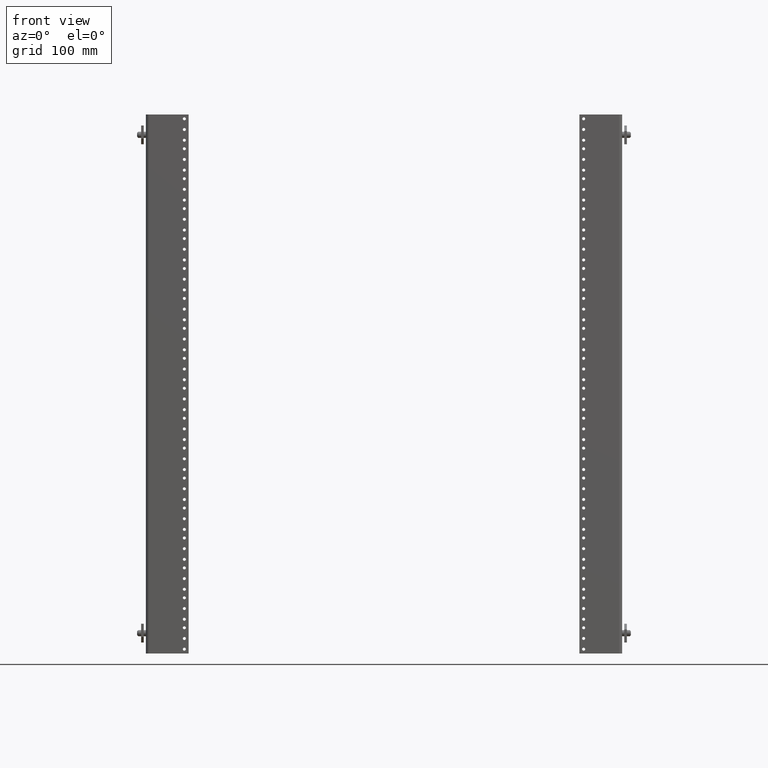
[diagram: clean part render]
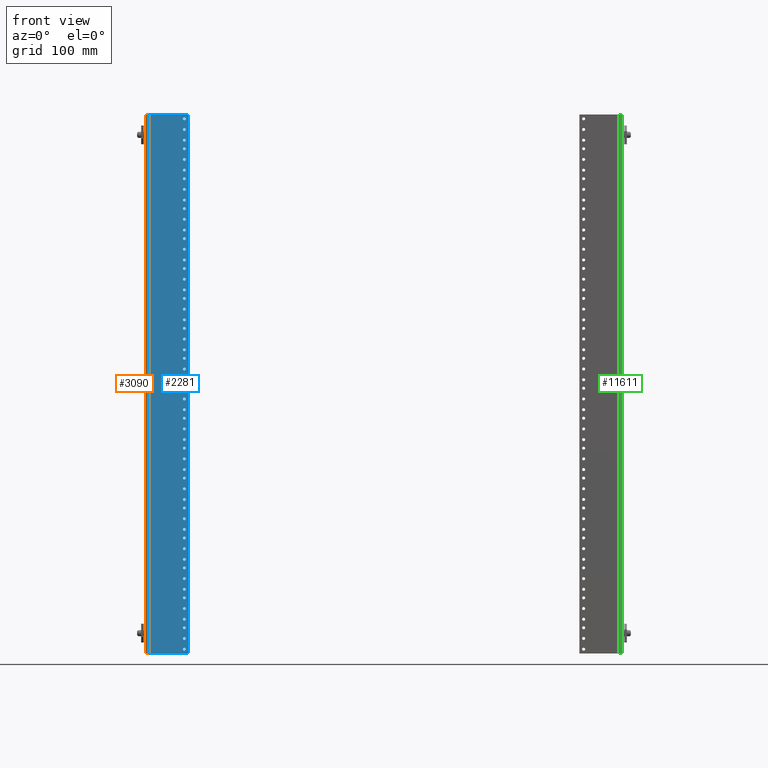
[diagram: same view with three faces highlighted in distinct colors, each labeled with its STEP entity id]
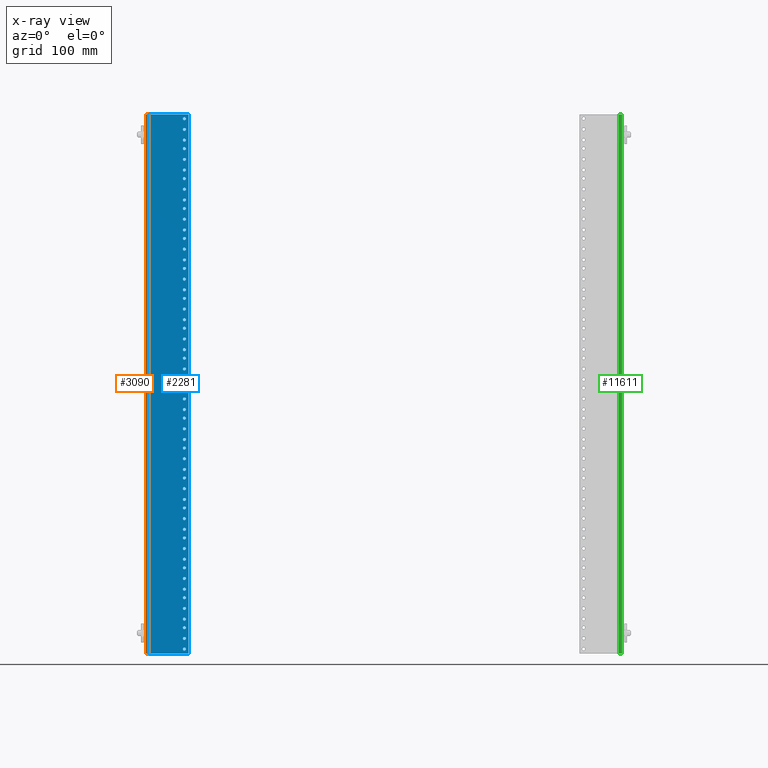
[diagram: x-ray of the same camera — body ghosted, the three highlighted faces saturated]
A machine part, front view with three faces highlighted in distinct colors.
The next image is the same camera in x-ray (body ghosted, the three faces saturated) — at least one of them is partly hidden behind the body in this view.
Their STEP definitions:

[orange] entity #3090 — the highlighted cylindrical surface (edge-blend (fillet) strip) has radius 4.699 mm, axis along (0, -0, -1).
#294 = VERTEX_POINT ( 'NONE', #8585 ) ;
#549 = DIRECTION ( 'NONE',  ( 4.447480477593413555E-48, -5.378950188740039876E-17, -1.000000000000000000 ) ) ;
#1217 = ORIENTED_EDGE ( 'NONE', *, *, #8969, .F. ) ;
#1767 = ORIENTED_EDGE ( 'NONE', *, *, #6645, .T. ) ;
#1983 = DIRECTION ( 'NONE',  ( 4.447480477593413555E-48, -5.378950188740039876E-17, -1.000000000000000000 ) ) ;
#2261 = DIRECTION ( 'NONE',  ( 4.447480477593413555E-48, -5.378950188740039876E-17, -1.000000000000000000 ) ) ;
#2932 = DIRECTION ( 'NONE',  ( -1.000000000000000000, 0.0000000000000000000, 0.0000000000000000000 ) ) ;
#3090 = ADVANCED_FACE ( 'NONE', ( #7077 ), #8780, .T. ) ;
#3126 = CARTESIAN_POINT ( 'NONE',  ( -26.40500000000000114, 0.1850000000000007194, -15.74999999999999645 ) ) ;
#3238 = CARTESIAN_POINT ( 'NONE',  ( -26.40500000000000114, 2.398463918724652136E-15, 15.75000000000000533 ) ) ;
#3668 = ORIENTED_EDGE ( 'NONE', *, *, #7637, .F. ) ;
#3953 = CARTESIAN_POINT ( 'NONE',  ( -26.40500000000000114, 2.398463918724652136E-15, 15.75000000000000533 ) ) ;
#4233 = DIRECTION ( 'NONE',  ( -1.000000000000000000, 0.0000000000000000000, 0.0000000000000000000 ) ) ;
#4505 = DIRECTION ( 'NONE',  ( -1.000000000000000000, 0.0000000000000000000, 0.0000000000000000000 ) ) ;
#4739 = VERTEX_POINT ( 'NONE', #11869 ) ;
#5152 = LINE ( 'NONE', #3238, #8913 ) ;
#6020 = CARTESIAN_POINT ( 'NONE',  ( -26.59000000000000341, 0.1850000000000024403, 15.75000000000000533 ) ) ;
#6268 = EDGE_CURVE ( 'NONE', #4739, #12240, #9169, .T. ) ;
#6277 = VECTOR ( 'NONE', #2261, 39.37007874015748143 ) ;
#6645 = EDGE_CURVE ( 'NONE', #7201, #4739, #9630, .T. ) ;
#6817 = DIRECTION ( 'NONE',  ( 4.447480477593413555E-48, -5.378950188740039876E-17, -1.000000000000000000 ) ) ;
#6861 = CARTESIAN_POINT ( 'NONE',  ( -26.40500000000000114, 0.1850000000000024403, 15.75000000000000533 ) ) ;
#7077 = FACE_OUTER_BOUND ( 'NONE', #7629, .T. ) ;
#7201 = VERTEX_POINT ( 'NONE', #3953 ) ;
#7629 = EDGE_LOOP ( 'NONE', ( #11614, #3668, #1217, #1767 ) ) ;
#7637 = EDGE_CURVE ( 'NONE', #294, #12240, #8836, .T. ) ;
#8171 = AXIS2_PLACEMENT_3D ( 'NONE', #6861, #11058, #4233 ) ;
#8585 = CARTESIAN_POINT ( 'NONE',  ( -26.40500000000000114, 7.040946092715394398E-16, -15.74999999999999645 ) ) ;
#8641 = AXIS2_PLACEMENT_3D ( 'NONE', #12792, #6817, #2932 ) ;
#8780 = CYLINDRICAL_SURFACE ( 'NONE', #8641, 0.1850000000000003586 ) ;
#8836 = CIRCLE ( 'NONE', #9456, 0.1850000000000003586 ) ;
#8913 = VECTOR ( 'NONE', #1983, 39.37007874015748143 ) ;
#8969 = EDGE_CURVE ( 'NONE', #7201, #294, #5152, .T. ) ;
#9169 = LINE ( 'NONE', #6020, #6277 ) ;
#9456 = AXIS2_PLACEMENT_3D ( 'NONE', #3126, #549, #4505 ) ;
#9630 = CIRCLE ( 'NONE', #8171, 0.1850000000000003586 ) ;
#11058 = DIRECTION ( 'NONE',  ( 4.447480477593413555E-48, -5.378950188740039876E-17, -1.000000000000000000 ) ) ;
#11614 = ORIENTED_EDGE ( 'NONE', *, *, #6268, .T. ) ;
#11869 = CARTESIAN_POINT ( 'NONE',  ( -26.59000000000000341, 0.1850000000000024403, 15.75000000000000533 ) ) ;
#12240 = VERTEX_POINT ( 'NONE', #12394 ) ;
#12394 = CARTESIAN_POINT ( 'NONE',  ( -26.59000000000000341, 0.1850000000000007194, -15.74999999999999645 ) ) ;
#12792 = CARTESIAN_POINT ( 'NONE',  ( -26.40500000000000114, 0.1850000000000024403, 15.75000000000000533 ) ) ;

[blue] entity #2281 — the highlighted planar face has unit normal (-0, -1, 0).
#13 = CARTESIAN_POINT ( 'NONE',  ( -24.33999999999999986, 1.365886097587424629E-15, -0.2499999999999964473 ) ) ;
#16 = CARTESIAN_POINT ( 'NONE',  ( -24.33999999999999986, 1.144004402301897944E-15, -4.374999999999995559 ) ) ;
#43 = AXIS2_PLACEMENT_3D ( 'NONE', #12120, #4169, #12258 ) ;
#76 = DIRECTION ( 'NONE',  ( -1.000000000000000000, 8.326672684688674053E-17, 0.0000000000000000000 ) ) ;
#104 = CARTESIAN_POINT ( 'NONE',  ( -24.25150000000000361, 9.483720403700472487E-16, -7.874999999999996447 ) ) ;
#106 = CARTESIAN_POINT ( 'NONE',  ( -24.42849999999999966, 1.184991946307472459E-15, -3.749999999999996003 ) ) ;
#128 = ORIENTED_EDGE ( 'NONE', *, *, #982, .T. ) ;
#147 = EDGE_LOOP ( 'NONE', ( #1225, #11245 ) ) ;
#149 = ORIENTED_EDGE ( 'NONE', *, *, #6863, .T. ) ;
#154 = CARTESIAN_POINT ( 'NONE',  ( -24.42849999999999966, 1.433768392536699504E-15, 0.8750000000000044409 ) ) ;
#158 = VERTEX_POINT ( 'NONE', #10685 ) ;
#161 = DIRECTION ( 'NONE',  ( -1.000000000000000000, 8.326672684688674053E-17, 0.0000000000000000000 ) ) ;
#197 = CARTESIAN_POINT ( 'NONE',  ( -24.42849999999999966, 8.689786227189955016E-16, -9.624999999999996447 ) ) ;
#204 = CIRCLE ( 'NONE', #4404, 0.08849999999999880185 ) ;
#218 = CARTESIAN_POINT ( 'NONE',  ( -24.25150000000000361, 1.761938256416978493E-15, 7.250000000000005329 ) ) ;
#224 = AXIS2_PLACEMENT_3D ( 'NONE', #7954, #3092, #9086 ) ;
#241 = CARTESIAN_POINT ( 'NONE',  ( -24.25150000000000361, 1.607293438490702115E-15, 4.375000000000004441 ) ) ;
#242 = AXIS2_PLACEMENT_3D ( 'NONE', #7301, #6438, #8289 ) ;
#243 = CIRCLE ( 'NONE', #9241, 0.08849999999999880185 ) ;
#263 = DIRECTION ( 'NONE',  ( -1.000000000000000000, 8.326672684688674053E-17, 0.0000000000000000000 ) ) ;
#294 = VERTEX_POINT ( 'NONE', #8585 ) ;
#312 = EDGE_CURVE ( 'NONE', #2759, #4740, #2265, .T. ) ;
#339 = ORIENTED_EDGE ( 'NONE', *, *, #4182, .T. ) ;
#343 = DIRECTION ( 'NONE',  ( -1.000000000000000000, 8.326672684688674053E-17, 0.0000000000000000000 ) ) ;
#350 = VERTEX_POINT ( 'NONE', #6648 ) ;
#355 = CARTESIAN_POINT ( 'NONE',  ( -24.33999999999999986, 1.177622840981523098E-15, -3.749999999999996003 ) ) ;
#356 = DIRECTION ( 'NONE',  ( -1.000000000000000000, 8.326672684688674053E-17, 0.0000000000000000000 ) ) ;
#365 = VERTEX_POINT ( 'NONE', #11582 ) ;
#381 = DIRECTION ( 'NONE',  ( 8.326672684688670355E-17, 1.000000000000000000, -5.378950188740039876E-17 ) ) ;
#390 = VERTEX_POINT ( 'NONE', #9599 ) ;
#391 = CARTESIAN_POINT ( 'NONE',  ( -24.33999999999999986, 1.742412610799227494E-15, 6.750000000000004441 ) ) ;
#394 = ORIENTED_EDGE ( 'NONE', *, *, #5280, .T. ) ;
#400 = DIRECTION ( 'NONE',  ( 1.000000000000000000, -8.326672684688670355E-17, 4.478875760888269837E-33 ) ) ;
#422 = CIRCLE ( 'NONE', #8826, 0.08849999999999880185 ) ;
#439 = CARTESIAN_POINT ( 'NONE',  ( -24.33999999999999986, 1.049872773998947277E-15, -6.124999999999995559 ) ) ;
#464 = CIRCLE ( 'NONE', #2145, 0.08849999999999880185 ) ;
#465 = AXIS2_PLACEMENT_3D ( 'NONE', #2765, #8743, #4809 ) ;
#483 = VERTEX_POINT ( 'NONE', #12513 ) ;
#519 = FACE_BOUND ( 'NONE', #9734, .T. ) ;
#521 = CARTESIAN_POINT ( 'NONE',  ( -24.08999999999999631, 2.205701446074109127E-15, 15.75000000000000533 ) ) ;
#531 = CARTESIAN_POINT ( 'NONE',  ( -24.25150000000000361, 1.230766925278899250E-15, -2.624999999999995559 ) ) ;
#546 = DIRECTION ( 'NONE',  ( -1.000000000000000000, 8.326672684688674053E-17, 0.0000000000000000000 ) ) ;
#551 = DIRECTION ( 'NONE',  ( 8.326672684688670355E-17, 1.000000000000000000, -5.378950188740039876E-17 ) ) ;
#576 = AXIS2_PLACEMENT_3D ( 'NONE', #11157, #4266, #2079 ) ;
#580 = ORIENTED_EDGE ( 'NONE', *, *, #10157, .T. ) ;
#591 = AXIS2_PLACEMENT_3D ( 'NONE', #12956, #2964, #4948 ) ;
#607 = DIRECTION ( 'NONE',  ( 8.326672684688670355E-17, 1.000000000000000000, -5.378950188740039876E-17 ) ) ;
#641 = FACE_BOUND ( 'NONE', #8038, .T. ) ;
#646 = DIRECTION ( 'NONE',  ( 8.326672684688670355E-17, 1.000000000000000000, -5.378950188740039876E-17 ) ) ;
#651 = CIRCLE ( 'NONE', #2124, 0.08849999999999880185 ) ;
#666 = ORIENTED_EDGE ( 'NONE', *, *, #11385, .T. ) ;
#680 = CARTESIAN_POINT ( 'NONE',  ( -24.42849999999999966, 1.938044972731078387E-15, 10.25000000000000533 ) ) ;
#682 = EDGE_CURVE ( 'NONE', #9328, #2028, #5435, .T. ) ;
#705 = ORIENTED_EDGE ( 'NONE', *, *, #4180, .T. ) ;
#706 = DIRECTION ( 'NONE',  ( 8.326672684688670355E-17, 1.000000000000000000, -5.378950188740039876E-17 ) ) ;
#709 = DIRECTION ( 'NONE',  ( 8.326672684688670355E-17, 1.000000000000000000, -5.378950188740039876E-17 ) ) ;
#714 = VERTEX_POINT ( 'NONE', #3505 ) ;
#726 = CARTESIAN_POINT ( 'NONE',  ( -24.33999999999999986, 1.520530915513700809E-15, 2.625000000000004441 ) ) ;
#732 = ORIENTED_EDGE ( 'NONE', *, *, #1513, .T. ) ;
#733 = EDGE_LOOP ( 'NONE', ( #9712, #8527 ) ) ;
#751 = EDGE_CURVE ( 'NONE', #2596, #6511, #2689, .T. ) ;
#767 = PLANE ( 'NONE',  #12814 ) ;
#774 = ORIENTED_EDGE ( 'NONE', *, *, #5618, .T. ) ;
#781 = CARTESIAN_POINT ( 'NONE',  ( -24.33999999999999986, 8.616095173930459430E-16, -9.624999999999996447 ) ) ;
#802 = CARTESIAN_POINT ( 'NONE',  ( -24.42849999999999966, 8.084654330956698897E-16, -10.74999999999999645 ) ) ;
#813 = CIRCLE ( 'NONE', #9023, 0.08849999999999880185 ) ;
#838 = CIRCLE ( 'NONE', #4012, 0.08849999999999880185 ) ;
#839 = CARTESIAN_POINT ( 'NONE',  ( -24.42849999999999966, 1.682544838765926351E-15, 5.500000000000004441 ) ) ;
#842 = CIRCLE ( 'NONE', #2947, 0.08849999999999880185 ) ;
#843 = VERTEX_POINT ( 'NONE', #1927 ) ;
#855 = DIRECTION ( 'NONE',  ( -1.000000000000000000, 8.326672684688809639E-17, 0.0000000000000000000 ) ) ;
#878 = CARTESIAN_POINT ( 'NONE',  ( -24.33999999999999986, 1.392780848531124791E-15, 0.2500000000000051625 ) ) ;
#880 = DIRECTION ( 'NONE',  ( 8.326672684688670355E-17, 1.000000000000000000, -5.378950188740039876E-17 ) ) ;
#916 = ORIENTED_EDGE ( 'NONE', *, *, #7663, .T. ) ;
#938 = ORIENTED_EDGE ( 'NONE', *, *, #7214, .T. ) ;
#941 = DIRECTION ( 'NONE',  ( 8.326672684688670355E-17, 1.000000000000000000, -5.378950188740039876E-17 ) ) ;
#949 = EDGE_CURVE ( 'NONE', #8110, #8522, #6260, .T. ) ;
#953 = DIRECTION ( 'NONE',  ( -1.000000000000000000, 8.326672684688674053E-17, 0.0000000000000000000 ) ) ;
#960 = VERTEX_POINT ( 'NONE', #4294 ) ;
#969 = DIRECTION ( 'NONE',  ( 8.326672684688670355E-17, 1.000000000000000000, -5.378950188740039876E-17 ) ) ;
#980 = DIRECTION ( 'NONE',  ( 8.326672684688670355E-17, 1.000000000000000000, -5.378950188740039876E-17 ) ) ;
#981 = CARTESIAN_POINT ( 'NONE',  ( -24.33999999999999986, 1.204517591925223457E-15, -3.249999999999995559 ) ) ;
#982 = EDGE_CURVE ( 'NONE', #365, #2093, #9011, .T. ) ;
#989 = ORIENTED_EDGE ( 'NONE', *, *, #12747, .T. ) ;
#993 = ORIENTED_EDGE ( 'NONE', *, *, #949, .T. ) ;
#1004 = CARTESIAN_POINT ( 'NONE',  ( -24.42849999999999966, 1.279123574610423323E-15, -1.999999999999995559 ) ) ;
#1009 = EDGE_CURVE ( 'NONE', #294, #2187, #5350, .T. ) ;
#1013 = CARTESIAN_POINT ( 'NONE',  ( -24.33999999999999986, 5.455961938045686897E-16, -15.49999999999999645 ) ) ;
#1037 = ORIENTED_EDGE ( 'NONE', *, *, #2790, .T. ) ;
#1044 = VERTEX_POINT ( 'NONE', #531 ) ;
#1056 = DIRECTION ( 'NONE',  ( 8.326672684688670355E-17, 1.000000000000000000, -5.378950188740039876E-17 ) ) ;
#1065 = CIRCLE ( 'NONE', #10512, 0.08849999999999880185 ) ;
#1083 = ORIENTED_EDGE ( 'NONE', *, *, #7282, .T. ) ;
#1085 = CIRCLE ( 'NONE', #7798, 0.08849999999999880185 ) ;
#1107 = CIRCLE ( 'NONE', #7207, 0.08849999999999880185 ) ;
#1110 = ORIENTED_EDGE ( 'NONE', *, *, #8074, .T. ) ;
#1128 = CARTESIAN_POINT ( 'NONE',  ( -24.25150000000000361, 1.264385363958524601E-15, -1.999999999999995559 ) ) ;
#1143 = VERTEX_POINT ( 'NONE', #12557 ) ;
#1154 = DIRECTION ( 'NONE',  ( 8.326672684688670355E-17, 1.000000000000000000, -5.378950188740039876E-17 ) ) ;
#1169 = DIRECTION ( 'NONE',  ( -1.000000000000000000, 8.326672684688809639E-17, 0.0000000000000000000 ) ) ;
#1190 = DIRECTION ( 'NONE',  ( 8.326672684688670355E-17, 1.000000000000000000, -5.378950188740039876E-17 ) ) ;
#1191 = ORIENTED_EDGE ( 'NONE', *, *, #2007, .T. ) ;
#1194 = VERTEX_POINT ( 'NONE', #3088 ) ;
#1195 = CARTESIAN_POINT ( 'NONE',  ( -24.42849999999999966, 1.716163277445551505E-15, 6.125000000000004441 ) ) ;
#1210 = CARTESIAN_POINT ( 'NONE',  ( -24.33999999999999986, 1.863438990045878521E-15, 9.000000000000005329 ) ) ;
#1214 = DIRECTION ( 'NONE',  ( 8.326672684688670355E-17, 1.000000000000000000, -5.378950188740039876E-17 ) ) ;
#1222 = EDGE_CURVE ( 'NONE', #5221, #3341, #4595, .T. ) ;
#1225 = ORIENTED_EDGE ( 'NONE', *, *, #10811, .T. ) ;
#1264 = CARTESIAN_POINT ( 'NONE',  ( -24.33999999999999986, 1.460017725890375296E-15, 1.500000000000004441 ) ) ;
#1291 = AXIS2_PLACEMENT_3D ( 'NONE', #9102, #11253, #3114 ) ;
#1302 = AXIS2_PLACEMENT_3D ( 'NONE', #4097, #8096, #10993 ) ;
#1307 = AXIS2_PLACEMENT_3D ( 'NONE', #2877, #2815, #5838 ) ;
#1317 = FACE_BOUND ( 'NONE', #10251, .T. ) ;
#1331 = AXIS2_PLACEMENT_3D ( 'NONE', #10125, #2288, #5138 ) ;
#1358 = VERTEX_POINT ( 'NONE', #8027 ) ;
#1366 = EDGE_LOOP ( 'NONE', ( #9087, #6584 ) ) ;
#1376 = FACE_BOUND ( 'NONE', #7812, .T. ) ;
#1410 = CARTESIAN_POINT ( 'NONE',  ( -24.33999999999999986, 2.118939124011030162E-15, 13.75000000000000533 ) ) ;
#1443 = ORIENTED_EDGE ( 'NONE', *, *, #7365, .T. ) ;
#1449 = DIRECTION ( 'NONE',  ( -1.000000000000000000, 8.326672684688674053E-17, 0.0000000000000000000 ) ) ;
#1452 = CIRCLE ( 'NONE', #6911, 0.08849999999999880185 ) ;
#1462 = ORIENTED_EDGE ( 'NONE', *, *, #12448, .T. ) ;
#1485 = AXIS2_PLACEMENT_3D ( 'NONE', #11747, #1763, #5647 ) ;
#1488 = AXIS2_PLACEMENT_3D ( 'NONE', #2164, #1897, #7034 ) ;
#1496 = EDGE_CURVE ( 'NONE', #6222, #5591, #11729, .T. ) ;
#1500 = ORIENTED_EDGE ( 'NONE', *, *, #5892, .T. ) ;
#1501 = AXIS2_PLACEMENT_3D ( 'NONE', #9657, #5367, #7401 ) ;
#1505 = CIRCLE ( 'NONE', #3820, 0.08849999999999880185 ) ;
#1512 = CIRCLE ( 'NONE', #10119, 0.08849999999999880185 ) ;
#1513 = EDGE_CURVE ( 'NONE', #7579, #11382, #9223, .T. ) ;
#1520 = EDGE_LOOP ( 'NONE', ( #1964, #11194 ) ) ;
#1525 = CARTESIAN_POINT ( 'NONE',  ( -24.33999999999999986, 8.010963277697204297E-16, -10.74999999999999645 ) ) ;
#1529 = VERTEX_POINT ( 'NONE', #8515 ) ;
#1534 = VERTEX_POINT ( 'NONE', #5698 ) ;
#1541 = CIRCLE ( 'NONE', #3438, 0.08849999999999880185 ) ;
#1559 = VERTEX_POINT ( 'NONE', #6612 ) ;
#1580 = DIRECTION ( 'NONE',  ( -1.000000000000000000, 8.326672684688809639E-17, 0.0000000000000000000 ) ) ;
#1582 = DIRECTION ( 'NONE',  ( 8.326672684688670355E-17, 1.000000000000000000, -5.378950188740039876E-17 ) ) ;
#1584 = EDGE_CURVE ( 'NONE', #1194, #11200, #10059, .T. ) ;
#1585 = ORIENTED_EDGE ( 'NONE', *, *, #12741, .T. ) ;
#1587 = CARTESIAN_POINT ( 'NONE',  ( -24.33999999999999986, 1.332267658907799475E-15, -0.8749999999999956701 ) ) ;
#1595 = DIRECTION ( 'NONE',  ( 8.326672684688670355E-17, 1.000000000000000000, -5.378950188740039876E-17 ) ) ;
#1598 = EDGE_CURVE ( 'NONE', #8884, #5276, #3546, .T. ) ;
#1601 = EDGE_CURVE ( 'NONE', #10304, #3814, #4397, .T. ) ;
#1607 = DIRECTION ( 'NONE',  ( -1.000000000000000000, 8.326672684688674053E-17, 0.0000000000000000000 ) ) ;
#1620 = VERTEX_POINT ( 'NONE', #7604 ) ;
#1627 = CARTESIAN_POINT ( 'NONE',  ( -24.33999999999999986, 1.554149354193326160E-15, 3.250000000000004441 ) ) ;
#1630 = CARTESIAN_POINT ( 'NONE',  ( -24.42849999999999966, 1.904426534051453036E-15, 9.625000000000005329 ) ) ;
#1654 = CARTESIAN_POINT ( 'NONE',  ( -24.33999999999999986, 2.085320685331405206E-15, 13.12500000000000533 ) ) ;
#1657 = CARTESIAN_POINT ( 'NONE',  ( -24.42849999999999966, 9.294918123423208177E-16, -8.499999999999996447 ) ) ;
#1673 = CIRCLE ( 'NONE', #224, 0.08849999999999880185 ) ;
#1674 = DIRECTION ( 'NONE',  ( -1.000000000000000000, 8.326672684688809639E-17, 0.0000000000000000000 ) ) ;
#1678 = DIRECTION ( 'NONE',  ( -1.000000000000000000, 8.326672684688809639E-17, 0.0000000000000000000 ) ) ;
#1682 = ORIENTED_EDGE ( 'NONE', *, *, #2127, .T. ) ;
#1695 = FACE_BOUND ( 'NONE', #1520, .T. ) ;
#1726 = CIRCLE ( 'NONE', #10516, 0.08849999999999880185 ) ;
#1742 = CARTESIAN_POINT ( 'NONE',  ( -24.33999999999999986, 1.083491212678572628E-15, -5.499999999999995559 ) ) ;
#1756 = DIRECTION ( 'NONE',  ( 8.326672684688670355E-17, 1.000000000000000000, -5.378950188740039876E-17 ) ) ;
#1761 = FACE_BOUND ( 'NONE', #11974, .T. ) ;
#1762 = AXIS2_PLACEMENT_3D ( 'NONE', #6057, #1190, #8099 ) ;
#1763 = DIRECTION ( 'NONE',  ( 8.326672684688670355E-17, 1.000000000000000000, -5.378950188740039876E-17 ) ) ;
#1768 = ORIENTED_EDGE ( 'NONE', *, *, #11766, .T. ) ;
#1778 = CARTESIAN_POINT ( 'NONE',  ( -24.42849999999999966, 9.967286897015713223E-16, -7.249999999999996447 ) ) ;
#1795 = CARTESIAN_POINT ( 'NONE',  ( -24.33999999999999986, 8.279910787134205921E-16, -10.24999999999999645 ) ) ;
#1854 = CARTESIAN_POINT ( 'NONE',  ( -24.42849999999999966, 1.023623440645271682E-15, -6.749999999999995559 ) ) ;
#1863 = CARTESIAN_POINT ( 'NONE',  ( -24.33999999999999986, 1.836544239102178161E-15, 8.500000000000005329 ) ) ;
#1864 = AXIS2_PLACEMENT_3D ( 'NONE', #7528, #6811, #2724 ) ;
#1897 = DIRECTION ( 'NONE',  ( 8.326672684688670355E-17, 1.000000000000000000, -5.378950188740039876E-17 ) ) ;
#1912 = CIRCLE ( 'NONE', #5490, 0.08849999999999880185 ) ;
#1916 = AXIS2_PLACEMENT_3D ( 'NONE', #3911, #941, #4967 ) ;
#1921 = CARTESIAN_POINT ( 'NONE',  ( -24.25150000000000361, 1.735043505473278133E-15, 6.750000000000004441 ) ) ;
#1922 = VERTEX_POINT ( 'NONE', #9362 ) ;
#1923 = EDGE_CURVE ( 'NONE', #1529, #8737, #12383, .T. ) ;
#1927 = CARTESIAN_POINT ( 'NONE',  ( -24.42849999999999966, 1.373255202913373990E-15, -0.2499999999999964473 ) ) ;
#1933 = DIRECTION ( 'NONE',  ( -1.000000000000000000, 8.326672684688674053E-17, 0.0000000000000000000 ) ) ;
#1964 = ORIENTED_EDGE ( 'NONE', *, *, #1584, .T. ) ;
#1983 = DIRECTION ( 'NONE',  ( 4.447480477593413555E-48, -5.378950188740039876E-17, -1.000000000000000000 ) ) ;
#1988 = DIRECTION ( 'NONE',  ( -1.000000000000000000, 8.326672684688670355E-17, -4.478875760888269837E-33 ) ) ;
#2001 = DIRECTION ( 'NONE',  ( 8.326672684688670355E-17, 1.000000000000000000, -5.378950188740039876E-17 ) ) ;
#2007 = EDGE_CURVE ( 'NONE', #3721, #9299, #204, .T. ) ;
#2025 = EDGE_LOOP ( 'NONE', ( #2796, #9352 ) ) ;
#2028 = VERTEX_POINT ( 'NONE', #5615 ) ;
#2055 = EDGE_LOOP ( 'NONE', ( #3078, #2607 ) ) ;
#2079 = DIRECTION ( 'NONE',  ( -1.000000000000000000, 8.326672684688674053E-17, 0.0000000000000000000 ) ) ;
#2083 = DIRECTION ( 'NONE',  ( -1.000000000000000000, 8.326672684688809639E-17, 0.0000000000000000000 ) ) ;
#2089 = VERTEX_POINT ( 'NONE', #12579 ) ;
#2093 = VERTEX_POINT ( 'NONE', #680 ) ;
#2096 = EDGE_CURVE ( 'NONE', #1534, #3076, #842, .T. ) ;
#2124 = AXIS2_PLACEMENT_3D ( 'NONE', #7318, #4555, #11581 ) ;
#2127 = EDGE_CURVE ( 'NONE', #7216, #9426, #8197, .T. ) ;
#2137 = CIRCLE ( 'NONE', #43, 0.08849999999999880185 ) ;
#2145 = AXIS2_PLACEMENT_3D ( 'NONE', #16, #4038, #12048 ) ;
#2164 = CARTESIAN_POINT ( 'NONE',  ( -24.33999999999999986, 2.213070752313980829E-15, 15.50000000000000533 ) ) ;
#2183 = EDGE_LOOP ( 'NONE', ( #10574, #6259 ) ) ;
#2187 = VERTEX_POINT ( 'NONE', #9201 ) ;
#2208 = EDGE_CURVE ( 'NONE', #4602, #4784, #11970, .T. ) ;
#2209 = CARTESIAN_POINT ( 'NONE',  ( -24.33999999999999986, 2.051702246651779855E-15, 12.50000000000000533 ) ) ;
#2210 = VERTEX_POINT ( 'NONE', #8909 ) ;
#2217 = EDGE_CURVE ( 'NONE', #6340, #12761, #6302, .T. ) ;
#2219 = EDGE_CURVE ( 'NONE', #12505, #12879, #9879, .T. ) ;
#2222 = CARTESIAN_POINT ( 'NONE',  ( -24.33999999999999986, 1.332267658907799475E-15, -0.8749999999999956701 ) ) ;
#2241 = DIRECTION ( 'NONE',  ( -1.000000000000000000, 8.326672684688674053E-17, 0.0000000000000000000 ) ) ;
#2246 = DIRECTION ( 'NONE',  ( 8.326672684688670355E-17, 1.000000000000000000, -5.378950188740039876E-17 ) ) ;
#2250 = DIRECTION ( 'NONE',  ( 8.326672684688670355E-17, 1.000000000000000000, -5.378950188740039876E-17 ) ) ;
#2256 = CARTESIAN_POINT ( 'NONE',  ( -24.33999999999999986, 1.486912476834075656E-15, 2.000000000000004441 ) ) ;
#2265 = CIRCLE ( 'NONE', #6461, 0.08849999999999880185 ) ;
#2272 = DIRECTION ( 'NONE',  ( 8.326672684688670355E-17, 1.000000000000000000, -5.378950188740039876E-17 ) ) ;
#2278 = CARTESIAN_POINT ( 'NONE',  ( -24.33999999999999986, 1.460017725890375296E-15, 1.500000000000004441 ) ) ;
#2281 = ADVANCED_FACE ( 'NONE', ( #6437, #12426, #11484, #2558, #6503, #7362, #1317, #6576, #7487, #5337, #2294, #6310, #2483, #5530, #5588, #9524, #519, #9580, #12546, #5395, #4281, #3287, #8343, #11369, #7298, #2365, #11290, #1376, #12618, #3882, #12883, #2878, #7818, #11676, #8796, #11622, #11886, #8875, #4793, #12681, #6766, #10631, #7737, #9642, #1695, #641, #7681, #5841, #11743, #7622, #12808, #5724, #1761, #10888, #4866 ), #767, .T. ) ;
#2288 = DIRECTION ( 'NONE',  ( 8.326672684688670355E-17, 1.000000000000000000, -5.378950188740039876E-17 ) ) ;
#2293 = AXIS2_PLACEMENT_3D ( 'NONE', #4517, #11806, #1674 ) ;
#2294 = FACE_BOUND ( 'NONE', #3759, .T. ) ;
#2306 = AXIS2_PLACEMENT_3D ( 'NONE', #981, #4029, #4580 ) ;
#2311 = DIRECTION ( 'NONE',  ( -1.000000000000000000, 8.326672684688674053E-17, 0.0000000000000000000 ) ) ;
#2319 = ORIENTED_EDGE ( 'NONE', *, *, #1598, .T. ) ;
#2326 = CIRCLE ( 'NONE', #9051, 0.08849999999999880185 ) ;
#2328 = CIRCLE ( 'NONE', #5270, 0.08849999999999880185 ) ;
#2341 = EDGE_CURVE ( 'NONE', #1358, #10308, #2326, .T. ) ;
#2354 = VERTEX_POINT ( 'NONE', #5644 ) ;
#2365 = FACE_BOUND ( 'NONE', #4045, .T. ) ;
#2408 = CARTESIAN_POINT ( 'NONE',  ( -24.42849999999999966, 1.400149953857074153E-15, 0.2500000000000051625 ) ) ;
#2409 = CARTESIAN_POINT ( 'NONE',  ( -24.42849999999999966, 1.090860318004522187E-15, -5.499999999999995559 ) ) ;
#2432 = ORIENTED_EDGE ( 'NONE', *, *, #10339, .T. ) ;
#2442 = VERTEX_POINT ( 'NONE', #4214 ) ;
#2461 = EDGE_CURVE ( 'NONE', #2089, #10502, #6313, .T. ) ;
#2473 = AXIS2_PLACEMENT_3D ( 'NONE', #3572, #2513, #10660 ) ;
#2483 = FACE_BOUND ( 'NONE', #733, .T. ) ;
#2486 = AXIS2_PLACEMENT_3D ( 'NONE', #1742, #2001, #12003 ) ;
#2498 = CARTESIAN_POINT ( 'NONE',  ( -24.33999999999999986, 1.802925800422552810E-15, 7.875000000000005329 ) ) ;
#2499 = CIRCLE ( 'NONE', #4192, 0.08849999999999880185 ) ;
#2501 = AXIS2_PLACEMENT_3D ( 'NONE', #8712, #3655, #3710 ) ;
#2503 = CIRCLE ( 'NONE', #4400, 0.08849999999999880185 ) ;
#2508 = AXIS2_PLACEMENT_3D ( 'NONE', #1654, #8697, #3847 ) ;
#2512 = EDGE_CURVE ( 'NONE', #10502, #2089, #9462, .T. ) ;
#2513 = DIRECTION ( 'NONE',  ( 8.326672684688670355E-17, 1.000000000000000000, -5.378950188740039876E-17 ) ) ;
#2521 = EDGE_CURVE ( 'NONE', #2187, #11945, #8800, .T. ) ;
#2526 = ORIENTED_EDGE ( 'NONE', *, *, #4776, .T. ) ;
#2532 = EDGE_CURVE ( 'NONE', #11036, #843, #3178, .T. ) ;
#2558 = FACE_BOUND ( 'NONE', #1366, .T. ) ;
#2573 = CARTESIAN_POINT ( 'NONE',  ( -24.25150000000000361, 1.513161810187751448E-15, 2.625000000000004441 ) ) ;
#2575 = EDGE_CURVE ( 'NONE', #4423, #5240, #11347, .T. ) ;
#2596 = VERTEX_POINT ( 'NONE', #10698 ) ;
#2607 = ORIENTED_EDGE ( 'NONE', *, *, #1601, .T. ) ;
#2609 = DIRECTION ( 'NONE',  ( -1.000000000000000000, 8.326672684688809639E-17, 0.0000000000000000000 ) ) ;
#2614 = CARTESIAN_POINT ( 'NONE',  ( -24.33999999999999986, 1.863438990045878521E-15, 9.000000000000005329 ) ) ;
#2616 = DIRECTION ( 'NONE',  ( 8.326672684688670355E-17, 1.000000000000000000, -5.378950188740039876E-17 ) ) ;
#2626 = EDGE_CURVE ( 'NONE', #483, #7790, #3582, .T. ) ;
#2633 = VERTEX_POINT ( 'NONE', #839 ) ;
#2670 = CARTESIAN_POINT ( 'NONE',  ( -24.25150000000000361, 1.103016858296323429E-15, -4.999999999999995559 ) ) ;
#2671 = EDGE_CURVE ( 'NONE', #4784, #4602, #4241, .T. ) ;
#2684 = CARTESIAN_POINT ( 'NONE',  ( -24.42849999999999966, 1.245505135930797972E-15, -2.624999999999995559 ) ) ;
#2689 = CIRCLE ( 'NONE', #2902, 0.08849999999999880185 ) ;
#2696 = DIRECTION ( 'NONE',  ( 8.326672684688670355E-17, 1.000000000000000000, -5.378950188740039876E-17 ) ) ;
#2697 = DIRECTION ( 'NONE',  ( -1.000000000000000000, 8.326672684688674053E-17, 0.0000000000000000000 ) ) ;
#2712 = CARTESIAN_POINT ( 'NONE',  ( -24.25150000000000361, 9.147536016904218978E-16, -8.499999999999996447 ) ) ;
#2724 = DIRECTION ( 'NONE',  ( -1.000000000000000000, 8.326672684688809639E-17, 0.0000000000000000000 ) ) ;
#2726 = CIRCLE ( 'NONE', #4003, 0.08849999999999880185 ) ;
#2728 = AXIS2_PLACEMENT_3D ( 'NONE', #878, #4906, #9951 ) ;
#2729 = AXIS2_PLACEMENT_3D ( 'NONE', #8184, #1154, #8317 ) ;
#2740 = DIRECTION ( 'NONE',  ( -1.000000000000000000, 8.326672684688809639E-17, 0.0000000000000000000 ) ) ;
#2747 = CIRCLE ( 'NONE', #12210, 0.08849999999999880185 ) ;
#2750 = CARTESIAN_POINT ( 'NONE',  ( -24.33999999999999986, 1.365886097587424629E-15, -0.2499999999999964473 ) ) ;
#2759 = VERTEX_POINT ( 'NONE', #5131 ) ;
#2765 = CARTESIAN_POINT ( 'NONE',  ( -24.33999999999999986, 8.952279560726712940E-16, -8.999999999999996447 ) ) ;
#2790 = EDGE_CURVE ( 'NONE', #350, #10046, #6121, .T. ) ;
#2796 = ORIENTED_EDGE ( 'NONE', *, *, #1496, .T. ) ;
#2802 = EDGE_CURVE ( 'NONE', #2028, #9328, #8627, .T. ) ;
#2815 = DIRECTION ( 'NONE',  ( 8.326672684688670355E-17, 1.000000000000000000, -5.378950188740039876E-17 ) ) ;
#2870 = CARTESIAN_POINT ( 'NONE',  ( -24.42849999999999966, 7.143338047927192227E-16, -12.49999999999999645 ) ) ;
#2877 = CARTESIAN_POINT ( 'NONE',  ( -24.33999999999999986, 5.792146324841938434E-16, -14.87499999999999645 ) ) ;
#2878 = FACE_BOUND ( 'NONE', #7231, .T. ) ;
#2885 = VERTEX_POINT ( 'NONE', #9258 ) ;
#2891 = CARTESIAN_POINT ( 'NONE',  ( -24.25150000000000361, 6.323587167815698967E-16, -13.74999999999999645 ) ) ;
#2902 = AXIS2_PLACEMENT_3D ( 'NONE', #4627, #8632, #7845 ) ;
#2909 = DIRECTION ( 'NONE',  ( -1.000000000000000000, 8.326672684688674053E-17, 0.0000000000000000000 ) ) ;
#2936 = EDGE_CURVE ( 'NONE', #10308, #1358, #6542, .T. ) ;
#2947 = AXIS2_PLACEMENT_3D ( 'NONE', #12712, #3701, #10192 ) ;
#2961 = CIRCLE ( 'NONE', #5936, 0.08849999999999880185 ) ;
#2964 = DIRECTION ( 'NONE',  ( 8.326672684688670355E-17, 1.000000000000000000, -5.378950188740039876E-17 ) ) ;
#2994 = CIRCLE ( 'NONE', #5312, 0.08849999999999880185 ) ;
#3041 = VERTEX_POINT ( 'NONE', #9053 ) ;
#3043 = EDGE_LOOP ( 'NONE', ( #11683, #11525 ) ) ;
#3044 = ORIENTED_EDGE ( 'NONE', *, *, #6286, .T. ) ;
#3053 = DIRECTION ( 'NONE',  ( -1.000000000000000000, 8.326672684688674053E-17, 0.0000000000000000000 ) ) ;
#3076 = VERTEX_POINT ( 'NONE', #11935 ) ;
#3078 = ORIENTED_EDGE ( 'NONE', *, *, #3327, .T. ) ;
#3088 = CARTESIAN_POINT ( 'NONE',  ( -24.42849999999999966, 8.353601840393700521E-16, -10.24999999999999645 ) ) ;
#3092 = DIRECTION ( 'NONE',  ( 8.326672684688670355E-17, 1.000000000000000000, -5.378950188740039876E-17 ) ) ;
#3104 = CARTESIAN_POINT ( 'NONE',  ( -24.33999999999999986, 1.238136030604848611E-15, -2.624999999999995559 ) ) ;
#3114 = DIRECTION ( 'NONE',  ( -1.000000000000000000, 8.326672684688674053E-17, 0.0000000000000000000 ) ) ;
#3118 = ORIENTED_EDGE ( 'NONE', *, *, #1222, .T. ) ;
#3128 = CIRCLE ( 'NONE', #2486, 0.08849999999999880185 ) ;
#3141 = AXIS2_PLACEMENT_3D ( 'NONE', #6613, #10616, #1607 ) ;
#3146 = ORIENTED_EDGE ( 'NONE', *, *, #8032, .T. ) ;
#3164 = CARTESIAN_POINT ( 'NONE',  ( -24.33999999999999986, 6.397278221075193567E-16, -13.74999999999999645 ) ) ;
#3178 = CIRCLE ( 'NONE', #10514, 0.08849999999999880185 ) ;
#3197 = CIRCLE ( 'NONE', #10532, 0.08849999999999880185 ) ;
#3220 = EDGE_CURVE ( 'NONE', #9426, #7216, #5295, .T. ) ;
#3238 = CARTESIAN_POINT ( 'NONE',  ( -26.40500000000000114, 2.398463918724652136E-15, 15.75000000000000533 ) ) ;
#3248 = DIRECTION ( 'NONE',  ( -1.000000000000000000, 8.326672684688809639E-17, 0.0000000000000000000 ) ) ;
#3287 = FACE_BOUND ( 'NONE', #10601, .T. ) ;
#3313 = DIRECTION ( 'NONE',  ( -1.000000000000000000, 8.326672684688674053E-17, 0.0000000000000000000 ) ) ;
#3327 = EDGE_CURVE ( 'NONE', #3814, #10304, #9068, .T. ) ;
#3332 = DIRECTION ( 'NONE',  ( -1.000000000000000000, 8.326672684688674053E-17, 0.0000000000000000000 ) ) ;
#3339 = AXIS2_PLACEMENT_3D ( 'NONE', #11013, #10746, #6869 ) ;
#3341 = VERTEX_POINT ( 'NONE', #3583 ) ;
#3363 = DIRECTION ( 'NONE',  ( -1.000000000000000000, 8.326672684688809639E-17, 0.0000000000000000000 ) ) ;
#3399 = ORIENTED_EDGE ( 'NONE', *, *, #7024, .T. ) ;
#3424 = DIRECTION ( 'NONE',  ( 8.326672684688670355E-17, 1.000000000000000000, -5.378950188740039876E-17 ) ) ;
#3438 = AXIS2_PLACEMENT_3D ( 'NONE', #10664, #12854, #1933 ) ;
#3455 = DIRECTION ( 'NONE',  ( -1.000000000000000000, 8.326672684688674053E-17, 0.0000000000000000000 ) ) ;
#3489 = VERTEX_POINT ( 'NONE', #9424 ) ;
#3505 = CARTESIAN_POINT ( 'NONE',  ( -24.25150000000000361, 1.829175133776228603E-15, 8.500000000000005329 ) ) ;
#3514 = DIRECTION ( 'NONE',  ( -1.000000000000000000, 8.326672684688809639E-17, 0.0000000000000000000 ) ) ;
#3516 = CARTESIAN_POINT ( 'NONE',  ( -24.33999999999999986, 1.049872773998947277E-15, -6.124999999999995559 ) ) ;
#3539 = DIRECTION ( 'NONE',  ( 8.326672684688670355E-17, 1.000000000000000000, -5.378950188740039876E-17 ) ) ;
#3546 = CIRCLE ( 'NONE', #3986, 0.08849999999999880185 ) ;
#3548 = EDGE_LOOP ( 'NONE', ( #8662, #11980 ) ) ;
#3556 = EDGE_CURVE ( 'NONE', #390, #12228, #2328, .T. ) ;
#3572 = CARTESIAN_POINT ( 'NONE',  ( -24.33999999999999986, 7.069646994667697627E-16, -12.49999999999999645 ) ) ;
#3578 = EDGE_CURVE ( 'NONE', #11200, #1194, #1726, .T. ) ;
#3582 = CIRCLE ( 'NONE', #5496, 0.08849999999999880185 ) ;
#3583 = CARTESIAN_POINT ( 'NONE',  ( -24.25150000000000361, 1.950201513022879629E-15, 10.75000000000000533 ) ) ;
#3596 = CARTESIAN_POINT ( 'NONE',  ( -24.42849999999999966, 2.059071351977729414E-15, 12.50000000000000533 ) ) ;
#3603 = ORIENTED_EDGE ( 'NONE', *, *, #4066, .T. ) ;
#3615 = DIRECTION ( 'NONE',  ( -1.000000000000000000, 8.326672684688674053E-17, 0.0000000000000000000 ) ) ;
#3619 = CIRCLE ( 'NONE', #10717, 0.08849999999999880185 ) ;
#3646 = AXIS2_PLACEMENT_3D ( 'NONE', #1264, #2250, #3053 ) ;
#3648 = EDGE_CURVE ( 'NONE', #8898, #3041, #7405, .T. ) ;
#3654 = DIRECTION ( 'NONE',  ( -1.000000000000000000, 8.326672684688674053E-17, 0.0000000000000000000 ) ) ;
#3655 = DIRECTION ( 'NONE',  ( 8.326672684688670355E-17, 1.000000000000000000, -5.378950188740039876E-17 ) ) ;
#3664 = ORIENTED_EDGE ( 'NONE', *, *, #2936, .T. ) ;
#3688 = DIRECTION ( 'NONE',  ( -1.000000000000000000, 8.326672684688674053E-17, 0.0000000000000000000 ) ) ;
#3701 = DIRECTION ( 'NONE',  ( 8.326672684688670355E-17, 1.000000000000000000, -5.378950188740039876E-17 ) ) ;
#3709 = CARTESIAN_POINT ( 'NONE',  ( -24.25150000000000361, 1.385411743205175430E-15, 0.2500000000000051625 ) ) ;
#3710 = DIRECTION ( 'NONE',  ( -1.000000000000000000, 8.326672684688674053E-17, 0.0000000000000000000 ) ) ;
#3713 = DIRECTION ( 'NONE',  ( -1.000000000000000000, 8.326672684688674053E-17, 0.0000000000000000000 ) ) ;
#3716 = ORIENTED_EDGE ( 'NONE', *, *, #2671, .T. ) ;
#3721 = VERTEX_POINT ( 'NONE', #12626 ) ;
#3741 = VERTEX_POINT ( 'NONE', #4875 ) ;
#3759 = EDGE_LOOP ( 'NONE', ( #8941, #1443 ) ) ;
#3775 = DIRECTION ( 'NONE',  ( -1.000000000000000000, 8.326672684688674053E-17, 0.0000000000000000000 ) ) ;
#3779 = DIRECTION ( 'NONE',  ( 8.326672684688670355E-17, 1.000000000000000000, -5.378950188740039876E-17 ) ) ;
#3814 = VERTEX_POINT ( 'NONE', #1630 ) ;
#3820 = AXIS2_PLACEMENT_3D ( 'NONE', #8689, #12837, #7640 ) ;
#3826 = DIRECTION ( 'NONE',  ( -1.000000000000000000, 8.326672684688674053E-17, 0.0000000000000000000 ) ) ;
#3830 = CARTESIAN_POINT ( 'NONE',  ( -24.33999999999999986, 1.991189057028454539E-15, 11.37500000000000711 ) ) ;
#3833 = CIRCLE ( 'NONE', #5101, 0.08849999999999880185 ) ;
#3839 = DIRECTION ( 'NONE',  ( 8.326672684688670355E-17, 1.000000000000000000, -5.378950188740039876E-17 ) ) ;
#3840 = EDGE_CURVE ( 'NONE', #12565, #11804, #7165, .T. ) ;
#3847 = DIRECTION ( 'NONE',  ( -1.000000000000000000, 8.326672684688674053E-17, 0.0000000000000000000 ) ) ;
#3850 = DIRECTION ( 'NONE',  ( 8.326672684688670355E-17, 1.000000000000000000, -5.378950188740039876E-17 ) ) ;
#3867 = CIRCLE ( 'NONE', #1331, 0.08849999999999880185 ) ;
#3875 = ORIENTED_EDGE ( 'NONE', *, *, #5611, .T. ) ;
#3880 = CARTESIAN_POINT ( 'NONE',  ( -24.33999999999999986, 1.930675867405129223E-15, 10.25000000000000533 ) ) ;
#3882 = FACE_BOUND ( 'NONE', #4499, .T. ) ;
#3908 = EDGE_LOOP ( 'NONE', ( #10085, #7308, #2432, #11626 ) ) ;
#3911 = CARTESIAN_POINT ( 'NONE',  ( -24.33999999999999986, 9.893595843756219610E-16, -7.249999999999996447 ) ) ;
#3913 = CARTESIAN_POINT ( 'NONE',  ( -24.42849999999999966, 2.032176601034029054E-15, 12.00000000000000533 ) ) ;
#3953 = CARTESIAN_POINT ( 'NONE',  ( -26.40500000000000114, 2.398463918724652136E-15, 15.75000000000000533 ) ) ;
#3971 = CARTESIAN_POINT ( 'NONE',  ( -24.33999999999999986, 9.893595843756219610E-16, -7.249999999999996447 ) ) ;
#3986 = AXIS2_PLACEMENT_3D ( 'NONE', #10808, #11531, #5766 ) ;
#3999 = EDGE_CURVE ( 'NONE', #12677, #11795, #243, .T. ) ;
#4003 = AXIS2_PLACEMENT_3D ( 'NONE', #3104, #7114, #12248 ) ;
#4009 = CIRCLE ( 'NONE', #5061, 0.08849999999999880185 ) ;
#4011 = CIRCLE ( 'NONE', #9884, 0.08849999999999880185 ) ;
#4012 = AXIS2_PLACEMENT_3D ( 'NONE', #7946, #4204, #76 ) ;
#4029 = DIRECTION ( 'NONE',  ( 8.326672684688670355E-17, 1.000000000000000000, -5.378950188740039876E-17 ) ) ;
#4030 = AXIS2_PLACEMENT_3D ( 'NONE', #7030, #12085, #11084 ) ;
#4038 = DIRECTION ( 'NONE',  ( 8.326672684688670355E-17, 1.000000000000000000, -5.378950188740039876E-17 ) ) ;
#4045 = EDGE_LOOP ( 'NONE', ( #5153, #1585 ) ) ;
#4066 = EDGE_CURVE ( 'NONE', #4740, #2759, #7147, .T. ) ;
#4081 = ORIENTED_EDGE ( 'NONE', *, *, #6624, .T. ) ;
#4084 = VERTEX_POINT ( 'NONE', #6492 ) ;
#4097 = CARTESIAN_POINT ( 'NONE',  ( -24.33999999999999986, 9.221227070163714564E-16, -8.499999999999996447 ) ) ;
#4099 = ORIENTED_EDGE ( 'NONE', *, *, #4476, .T. ) ;
#4135 = ORIENTED_EDGE ( 'NONE', *, *, #6633, .T. ) ;
#4153 = CARTESIAN_POINT ( 'NONE',  ( -24.25150000000000361, 1.042503668672997916E-15, -6.124999999999995559 ) ) ;
#4169 = DIRECTION ( 'NONE',  ( 8.326672684688670355E-17, 1.000000000000000000, -5.378950188740039876E-17 ) ) ;
#4178 = CARTESIAN_POINT ( 'NONE',  ( -24.25150000000000361, 8.542404120670964831E-16, -9.624999999999996447 ) ) ;
#4179 = AXIS2_PLACEMENT_3D ( 'NONE', #1013, #8119, #12129 ) ;
#4180 = EDGE_CURVE ( 'NONE', #8479, #7186, #12594, .T. ) ;
#4182 = EDGE_CURVE ( 'NONE', #5928, #1620, #1673, .T. ) ;
#4192 = AXIS2_PLACEMENT_3D ( 'NONE', #9413, #8442, #12455 ) ;
#4204 = DIRECTION ( 'NONE',  ( 8.326672684688670355E-17, 1.000000000000000000, -5.378950188740039876E-17 ) ) ;
#4206 = AXIS2_PLACEMENT_3D ( 'NONE', #439, #7415, #1678 ) ;
#4214 = CARTESIAN_POINT ( 'NONE',  ( -24.42849999999999966, 2.092689790657354370E-15, 13.12500000000000533 ) ) ;
#4241 = CIRCLE ( 'NONE', #4030, 0.08849999999999880185 ) ;
#4256 = DIRECTION ( 'NONE',  ( -1.000000000000000000, 8.326672684688809639E-17, 0.0000000000000000000 ) ) ;
#4260 = DIRECTION ( 'NONE',  ( -1.000000000000000000, 8.326672684688674053E-17, 0.0000000000000000000 ) ) ;
#4266 = DIRECTION ( 'NONE',  ( 8.326672684688670355E-17, 1.000000000000000000, -5.378950188740039876E-17 ) ) ;
#4281 = FACE_BOUND ( 'NONE', #8111, .T. ) ;
#4294 = CARTESIAN_POINT ( 'NONE',  ( -24.25150000000000361, 2.172083208308406314E-15, 14.87500000000000533 ) ) ;
#4303 = CARTESIAN_POINT ( 'NONE',  ( -24.42849999999999966, 1.870808095371827685E-15, 9.000000000000005329 ) ) ;
#4306 = DIRECTION ( 'NONE',  ( -1.000000000000000000, 8.326672684688674053E-17, 0.0000000000000000000 ) ) ;
#4314 = EDGE_CURVE ( 'NONE', #843, #11036, #5052, .T. ) ;
#4337 = EDGE_CURVE ( 'NONE', #8737, #1529, #12397, .T. ) ;
#4345 = ORIENTED_EDGE ( 'NONE', *, *, #4337, .T. ) ;
#4363 = DIRECTION ( 'NONE',  ( 8.326672684688670355E-17, 1.000000000000000000, -5.378950188740039876E-17 ) ) ;
#4372 = DIRECTION ( 'NONE',  ( 8.326672684688670355E-17, 1.000000000000000000, -5.378950188740039876E-17 ) ) ;
#4397 = CIRCLE ( 'NONE', #2501, 0.08849999999999880185 ) ;
#4400 = AXIS2_PLACEMENT_3D ( 'NONE', #2498, #6520, #343 ) ;
#4401 = AXIS2_PLACEMENT_3D ( 'NONE', #2256, #9303, #4306 ) ;
#4404 = AXIS2_PLACEMENT_3D ( 'NONE', #7515, #1595, #11515 ) ;
#4421 = AXIS2_PLACEMENT_3D ( 'NONE', #7992, #9763, #3713 ) ;
#4423 = VERTEX_POINT ( 'NONE', #5582 ) ;
#4476 = EDGE_CURVE ( 'NONE', #2210, #5345, #4011, .T. ) ;
#4493 = EDGE_CURVE ( 'NONE', #3489, #1143, #11338, .T. ) ;
#4499 = EDGE_LOOP ( 'NONE', ( #8464, #7883 ) ) ;
#4511 = EDGE_LOOP ( 'NONE', ( #9726, #3716 ) ) ;
#4517 = CARTESIAN_POINT ( 'NONE',  ( -24.33999999999999986, 5.792146324841938434E-16, -14.87499999999999645 ) ) ;
#4533 = CARTESIAN_POINT ( 'NONE',  ( -24.33999999999999986, 1.957570618348829188E-15, 10.75000000000000533 ) ) ;
#4555 = DIRECTION ( 'NONE',  ( 8.326672684688670355E-17, 1.000000000000000000, -5.378950188740039876E-17 ) ) ;
#4567 = EDGE_CURVE ( 'NONE', #5240, #4423, #11976, .T. ) ;
#4580 = DIRECTION ( 'NONE',  ( -1.000000000000000000, 8.326672684688674053E-17, 0.0000000000000000000 ) ) ;
#4586 = ORIENTED_EDGE ( 'NONE', *, *, #3556, .T. ) ;
#4595 = CIRCLE ( 'NONE', #591, 0.08849999999999880185 ) ;
#4602 = VERTEX_POINT ( 'NONE', #2408 ) ;
#4627 = CARTESIAN_POINT ( 'NONE',  ( -24.33999999999999986, 1.016254335319322123E-15, -6.749999999999995559 ) ) ;
#4660 = ORIENTED_EDGE ( 'NONE', *, *, #10075, .T. ) ;
#4667 = DIRECTION ( 'NONE',  ( -1.000000000000000000, 8.326672684688674053E-17, 0.0000000000000000000 ) ) ;
#4677 = CIRCLE ( 'NONE', #6117, 0.08849999999999880185 ) ;
#4697 = EDGE_LOOP ( 'NONE', ( #705, #8115 ) ) ;
#4714 = DIRECTION ( 'NONE',  ( -1.000000000000000000, 8.326672684688674053E-17, 0.0000000000000000000 ) ) ;
#4716 = AXIS2_PLACEMENT_3D ( 'NONE', #8156, #11979, #2241 ) ;
#4731 = DIRECTION ( 'NONE',  ( 8.326672684688670355E-17, 1.000000000000000000, -5.378950188740039876E-17 ) ) ;
#4733 = EDGE_CURVE ( 'NONE', #4084, #6529, #12832, .T. ) ;
#4740 = VERTEX_POINT ( 'NONE', #8920 ) ;
#4746 = DIRECTION ( 'NONE',  ( 8.326672684688670355E-17, 1.000000000000000000, -5.378950188740039876E-17 ) ) ;
#4772 = DIRECTION ( 'NONE',  ( 8.326672684688670355E-17, 1.000000000000000000, -5.378950188740039876E-17 ) ) ;
#4776 = EDGE_CURVE ( 'NONE', #1559, #5448, #1912, .T. ) ;
#4784 = VERTEX_POINT ( 'NONE', #3709 ) ;
#4788 = CARTESIAN_POINT ( 'NONE',  ( -24.33999999999999986, 1.581044105137026125E-15, 3.750000000000004441 ) ) ;
#4790 = CARTESIAN_POINT ( 'NONE',  ( -24.33999999999999986, 1.426399287210750142E-15, 0.8750000000000044409 ) ) ;
#4793 = FACE_BOUND ( 'NONE', #2183, .T. ) ;
#4809 = DIRECTION ( 'NONE',  ( -1.000000000000000000, 8.326672684688809639E-17, 0.0000000000000000000 ) ) ;
#4833 = CIRCLE ( 'NONE', #2508, 0.08849999999999880185 ) ;
#4866 = FACE_BOUND ( 'NONE', #5942, .T. ) ;
#4875 = CARTESIAN_POINT ( 'NONE',  ( -24.25150000000000361, 2.138464769628781358E-15, 14.25000000000000533 ) ) ;
#4878 = CIRCLE ( 'NONE', #1302, 0.08849999999999880185 ) ;
#4880 = ORIENTED_EDGE ( 'NONE', *, *, #11866, .T. ) ;
#4890 = CIRCLE ( 'NONE', #12229, 0.08849999999999880185 ) ;
#4894 = ORIENTED_EDGE ( 'NONE', *, *, #8198, .T. ) ;
#4899 = ORIENTED_EDGE ( 'NONE', *, *, #9067, .T. ) ;
#4906 = DIRECTION ( 'NONE',  ( 8.326672684688670355E-17, 1.000000000000000000, -5.378950188740039876E-17 ) ) ;
#4935 = DIRECTION ( 'NONE',  ( -1.000000000000000000, 8.326672684688674053E-17, 0.0000000000000000000 ) ) ;
#4948 = DIRECTION ( 'NONE',  ( -1.000000000000000000, 8.326672684688674053E-17, 0.0000000000000000000 ) ) ;
#4957 = CARTESIAN_POINT ( 'NONE',  ( -24.33999999999999986, 1.110385963622272988E-15, -4.999999999999995559 ) ) ;
#4967 = DIRECTION ( 'NONE',  ( -1.000000000000000000, 8.326672684688809639E-17, 0.0000000000000000000 ) ) ;
#4990 = DIRECTION ( 'NONE',  ( -1.000000000000000000, 8.326672684688674053E-17, 0.0000000000000000000 ) ) ;
#5045 = EDGE_CURVE ( 'NONE', #10565, #1044, #12002, .T. ) ;
#5050 = CIRCLE ( 'NONE', #12592, 0.08849999999999880185 ) ;
#5052 = CIRCLE ( 'NONE', #5896, 0.08849999999999880185 ) ;
#5061 = AXIS2_PLACEMENT_3D ( 'NONE', #8120, #9170, #4256 ) ;
#5089 = DIRECTION ( 'NONE',  ( -1.000000000000000000, 8.326672684688674053E-17, 0.0000000000000000000 ) ) ;
#5100 = AXIS2_PLACEMENT_3D ( 'NONE', #4533, #6435, #10437 ) ;
#5101 = AXIS2_PLACEMENT_3D ( 'NONE', #7724, #10566, #2609 ) ;
#5110 = ORIENTED_EDGE ( 'NONE', *, *, #5045, .T. ) ;
#5117 = EDGE_CURVE ( 'NONE', #8522, #8110, #1085, .T. ) ;
#5122 = CARTESIAN_POINT ( 'NONE',  ( -24.25150000000000361, 2.044333141325830691E-15, 12.50000000000000533 ) ) ;
#5126 = CIRCLE ( 'NONE', #10154, 0.08849999999999880185 ) ;
#5131 = CARTESIAN_POINT ( 'NONE',  ( -24.25150000000000361, 1.324898553581850114E-15, -0.8749999999999956701 ) ) ;
#5132 = ORIENTED_EDGE ( 'NONE', *, *, #3840, .T. ) ;
#5138 = DIRECTION ( 'NONE',  ( -1.000000000000000000, 8.326672684688674053E-17, 0.0000000000000000000 ) ) ;
#5152 = LINE ( 'NONE', #3238, #8913 ) ;
#5153 = ORIENTED_EDGE ( 'NONE', *, *, #12584, .T. ) ;
#5154 = VERTEX_POINT ( 'NONE', #6700 ) ;
#5155 = VERTEX_POINT ( 'NONE', #10280 ) ;
#5209 = EDGE_LOOP ( 'NONE', ( #10362, #3399 ) ) ;
#5211 = ORIENTED_EDGE ( 'NONE', *, *, #7500, .T. ) ;
#5214 = LINE ( 'NONE', #8104, #12598 ) ;
#5221 = VERTEX_POINT ( 'NONE', #10902 ) ;
#5237 = DIRECTION ( 'NONE',  ( -1.000000000000000000, 8.326672684688674053E-17, 0.0000000000000000000 ) ) ;
#5240 = VERTEX_POINT ( 'NONE', #5794 ) ;
#5245 = AXIS2_PLACEMENT_3D ( 'NONE', #1210, #12200, #356 ) ;
#5270 = AXIS2_PLACEMENT_3D ( 'NONE', #8054, #7980, #3775 ) ;
#5276 = VERTEX_POINT ( 'NONE', #8811 ) ;
#5280 = EDGE_CURVE ( 'NONE', #6529, #4084, #8223, .T. ) ;
#5282 = ORIENTED_EDGE ( 'NONE', *, *, #7933, .T. ) ;
#5290 = DIRECTION ( 'NONE',  ( 8.326672684688670355E-17, 1.000000000000000000, -5.378950188740039876E-17 ) ) ;
#5295 = CIRCLE ( 'NONE', #12856, 0.08849999999999880185 ) ;
#5312 = AXIS2_PLACEMENT_3D ( 'NONE', #12881, #7815, #8008 ) ;
#5326 = DIRECTION ( 'NONE',  ( 8.326672684688670355E-17, 1.000000000000000000, -5.378950188740039876E-17 ) ) ;
#5335 = CARTESIAN_POINT ( 'NONE',  ( -24.42849999999999966, 1.588413210462975487E-15, 3.750000000000004441 ) ) ;
#5337 = FACE_BOUND ( 'NONE', #10290, .T. ) ;
#5345 = VERTEX_POINT ( 'NONE', #5335 ) ;
#5350 = LINE ( 'NONE', #9346, #9831 ) ;
#5367 = DIRECTION ( 'NONE',  ( 8.326672684688670355E-17, 1.000000000000000000, -5.378950188740039876E-17 ) ) ;
#5392 = DIRECTION ( 'NONE',  ( -1.000000000000000000, 8.326672684688809639E-17, 0.0000000000000000000 ) ) ;
#5395 = FACE_BOUND ( 'NONE', #6816, .T. ) ;
#5402 = ORIENTED_EDGE ( 'NONE', *, *, #2217, .T. ) ;
#5421 = DIRECTION ( 'NONE',  ( 8.326672684688670355E-17, 1.000000000000000000, -5.378950188740039876E-17 ) ) ;
#5432 = ORIENTED_EDGE ( 'NONE', *, *, #11651, .T. ) ;
#5435 = CIRCLE ( 'NONE', #2473, 0.08849999999999880185 ) ;
#5448 = VERTEX_POINT ( 'NONE', #2670 ) ;
#5451 = ORIENTED_EDGE ( 'NONE', *, *, #9696, .T. ) ;
#5485 = VECTOR ( 'NONE', #7624, 39.37007874015748143 ) ;
#5487 = AXIS2_PLACEMENT_3D ( 'NONE', #391, #10083, #161 ) ;
#5490 = AXIS2_PLACEMENT_3D ( 'NONE', #9699, #4772, #3654 ) ;
#5496 = AXIS2_PLACEMENT_3D ( 'NONE', #12947, #969, #2083 ) ;
#5515 = VERTEX_POINT ( 'NONE', #7548 ) ;
#5530 = FACE_BOUND ( 'NONE', #2055, .T. ) ;
#5539 = ORIENTED_EDGE ( 'NONE', *, *, #2341, .T. ) ;
#5540 = DIRECTION ( 'NONE',  ( 8.326672684688670355E-17, 1.000000000000000000, -5.378950188740039876E-17 ) ) ;
#5546 = DIRECTION ( 'NONE',  ( 8.326672684688670355E-17, 1.000000000000000000, -5.378950188740039876E-17 ) ) ;
#5554 = ORIENTED_EDGE ( 'NONE', *, *, #6168, .T. ) ;
#5555 = EDGE_CURVE ( 'NONE', #3341, #5221, #7194, .T. ) ;
#5582 = CARTESIAN_POINT ( 'NONE',  ( -24.42849999999999966, 1.561518459519275522E-15, 3.250000000000004441 ) ) ;
#5588 = FACE_BOUND ( 'NONE', #7866, .T. ) ;
#5591 = VERTEX_POINT ( 'NONE', #8669 ) ;
#5611 = EDGE_CURVE ( 'NONE', #2093, #365, #1512, .T. ) ;
#5615 = CARTESIAN_POINT ( 'NONE',  ( -24.25150000000000361, 6.995955941408202041E-16, -12.49999999999999645 ) ) ;
#5618 = EDGE_CURVE ( 'NONE', #11804, #12565, #2994, .T. ) ;
#5644 = CARTESIAN_POINT ( 'NONE',  ( -24.42849999999999966, 6.807153661130939704E-16, -13.12499999999999645 ) ) ;
#5647 = DIRECTION ( 'NONE',  ( -1.000000000000000000, 8.326672684688809639E-17, 0.0000000000000000000 ) ) ;
#5696 = EDGE_CURVE ( 'NONE', #11382, #7579, #12648, .T. ) ;
#5697 = DIRECTION ( 'NONE',  ( 8.326672684688670355E-17, 1.000000000000000000, -5.378950188740039876E-17 ) ) ;
#5698 = CARTESIAN_POINT ( 'NONE',  ( -24.42849999999999966, 7.412285557364193851E-16, -11.99999999999999645 ) ) ;
#5724 = FACE_BOUND ( 'NONE', #12224, .T. ) ;
#5726 = DIRECTION ( 'NONE',  ( -1.000000000000000000, 8.326672684688674053E-17, 0.0000000000000000000 ) ) ;
#5741 = CARTESIAN_POINT ( 'NONE',  ( -24.42849999999999966, 2.153202980280680081E-15, 14.25000000000000533 ) ) ;
#5752 = CARTESIAN_POINT ( 'NONE',  ( -24.25150000000000361, 7.937272224437709698E-16, -10.74999999999999645 ) ) ;
#5766 = DIRECTION ( 'NONE',  ( -1.000000000000000000, 8.326672684688674053E-17, 0.0000000000000000000 ) ) ;
#5768 = CARTESIAN_POINT ( 'NONE',  ( -24.33999999999999986, 2.085320685331405206E-15, 13.12500000000000533 ) ) ;
#5773 = ORIENTED_EDGE ( 'NONE', *, *, #4493, .T. ) ;
#5780 = ORIENTED_EDGE ( 'NONE', *, *, #9610, .T. ) ;
#5786 = DIRECTION ( 'NONE',  ( 8.326672684688670355E-17, 1.000000000000000000, -5.378950188740039876E-17 ) ) ;
#5794 = CARTESIAN_POINT ( 'NONE',  ( -24.25150000000000361, 1.546780248867376799E-15, 3.250000000000004441 ) ) ;
#5813 = EDGE_LOOP ( 'NONE', ( #1500, #4899 ) ) ;
#5838 = DIRECTION ( 'NONE',  ( -1.000000000000000000, 8.326672684688809639E-17, 0.0000000000000000000 ) ) ;
#5841 = FACE_BOUND ( 'NONE', #8097, .T. ) ;
#5884 = AXIS2_PLACEMENT_3D ( 'NONE', #7970, #3850, #2909 ) ;
#5888 = AXIS2_PLACEMENT_3D ( 'NONE', #3164, #1056, #10989 ) ;
#5892 = EDGE_CURVE ( 'NONE', #7032, #7561, #6257, .T. ) ;
#5896 = AXIS2_PLACEMENT_3D ( 'NONE', #13, #10131, #8033 ) ;
#5926 = CIRCLE ( 'NONE', #465, 0.08849999999999880185 ) ;
#5928 = VERTEX_POINT ( 'NONE', #2409 ) ;
#5936 = AXIS2_PLACEMENT_3D ( 'NONE', #11596, #551, #3514 ) ;
#5942 = EDGE_LOOP ( 'NONE', ( #11876, #732 ) ) ;
#5952 = DIRECTION ( 'NONE',  ( -1.000000000000000000, 8.326672684688809639E-17, 0.0000000000000000000 ) ) ;
#5963 = DIRECTION ( 'NONE',  ( 8.326672684688670355E-17, 1.000000000000000000, -5.378950188740039876E-17 ) ) ;
#5964 = CIRCLE ( 'NONE', #6589, 0.08849999999999880185 ) ;
#5969 = CARTESIAN_POINT ( 'NONE',  ( -24.33999999999999986, 5.455961938045686897E-16, -15.49999999999999645 ) ) ;
#5986 = EDGE_LOOP ( 'NONE', ( #5780, #1083 ) ) ;
#6028 = EDGE_LOOP ( 'NONE', ( #3044, #9548 ) ) ;
#6057 = CARTESIAN_POINT ( 'NONE',  ( -24.33999999999999986, 1.614662543816651674E-15, 4.375000000000004441 ) ) ;
#6074 = ORIENTED_EDGE ( 'NONE', *, *, #3648, .T. ) ;
#6081 = CARTESIAN_POINT ( 'NONE',  ( -24.42849999999999966, 1.151373507627847503E-15, -4.374999999999995559 ) ) ;
#6113 = AXIS2_PLACEMENT_3D ( 'NONE', #11658, #5697, #4714 ) ;
#6117 = AXIS2_PLACEMENT_3D ( 'NONE', #1410, #6474, #6608 ) ;
#6121 = CIRCLE ( 'NONE', #11996, 0.08849999999999880185 ) ;
#6127 = EDGE_LOOP ( 'NONE', ( #5554, #580 ) ) ;
#6133 = AXIS2_PLACEMENT_3D ( 'NONE', #11212, #1214, #5237 ) ;
#6143 = AXIS2_PLACEMENT_3D ( 'NONE', #9991, #980, #10244 ) ;
#6157 = CARTESIAN_POINT ( 'NONE',  ( -24.25150000000000361, 5.718455271582442848E-16, -14.87499999999999645 ) ) ;
#6164 = ORIENTED_EDGE ( 'NONE', *, *, #10974, .T. ) ;
#6168 = EDGE_CURVE ( 'NONE', #2442, #5155, #7321, .T. ) ;
#6190 = CIRCLE ( 'NONE', #1762, 0.08849999999999880185 ) ;
#6205 = ORIENTED_EDGE ( 'NONE', *, *, #2575, .T. ) ;
#6222 = VERTEX_POINT ( 'NONE', #6081 ) ;
#6257 = CIRCLE ( 'NONE', #576, 0.08849999999999880185 ) ;
#6258 = CARTESIAN_POINT ( 'NONE',  ( -24.33999999999999986, 9.557411456959966101E-16, -7.874999999999996447 ) ) ;
#6259 = ORIENTED_EDGE ( 'NONE', *, *, #751, .T. ) ;
#6260 = CIRCLE ( 'NONE', #7937, 0.08849999999999880185 ) ;
#6286 = EDGE_CURVE ( 'NONE', #11959, #10864, #8365, .T. ) ;
#6302 = CIRCLE ( 'NONE', #7154, 0.08849999999999880185 ) ;
#6306 = DIRECTION ( 'NONE',  ( 8.326672684688670355E-17, 1.000000000000000000, -5.378950188740039876E-17 ) ) ;
#6310 = FACE_BOUND ( 'NONE', #8086, .T. ) ;
#6313 = CIRCLE ( 'NONE', #242, 0.08849999999999880185 ) ;
#6340 = VERTEX_POINT ( 'NONE', #11458 ) ;
#6359 = CARTESIAN_POINT ( 'NONE',  ( -24.42849999999999966, 1.211886697251172819E-15, -3.249999999999995559 ) ) ;
#6371 = DIRECTION ( 'NONE',  ( -1.000000000000000000, 8.326672684688674053E-17, 0.0000000000000000000 ) ) ;
#6379 = DIRECTION ( 'NONE',  ( -1.000000000000000000, 8.326672684688809639E-17, 0.0000000000000000000 ) ) ;
#6383 = EDGE_CURVE ( 'NONE', #10686, #11506, #10041, .T. ) ;
#6435 = DIRECTION ( 'NONE',  ( 8.326672684688670355E-17, 1.000000000000000000, -5.378950188740039876E-17 ) ) ;
#6437 = FACE_OUTER_BOUND ( 'NONE', #3908, .T. ) ;
#6438 = DIRECTION ( 'NONE',  ( 8.326672684688670355E-17, 1.000000000000000000, -5.378950188740039876E-17 ) ) ;
#6453 = CARTESIAN_POINT ( 'NONE',  ( -24.33999999999999986, 1.675175733439976990E-15, 5.500000000000004441 ) ) ;
#6461 = AXIS2_PLACEMENT_3D ( 'NONE', #1587, #3839, #2697 ) ;
#6474 = DIRECTION ( 'NONE',  ( 8.326672684688670355E-17, 1.000000000000000000, -5.378950188740039876E-17 ) ) ;
#6492 = CARTESIAN_POINT ( 'NONE',  ( -24.25150000000000361, 2.017438390382130331E-15, 12.00000000000000533 ) ) ;
#6503 = FACE_BOUND ( 'NONE', #5209, .T. ) ;
#6511 = VERTEX_POINT ( 'NONE', #1854 ) ;
#6512 = CIRCLE ( 'NONE', #4421, 0.08849999999999880185 ) ;
#6520 = DIRECTION ( 'NONE',  ( 8.326672684688670355E-17, 1.000000000000000000, -5.378950188740039876E-17 ) ) ;
#6523 = CIRCLE ( 'NONE', #7155, 0.08849999999999880185 ) ;
#6529 = VERTEX_POINT ( 'NONE', #3913 ) ;
#6538 = CIRCLE ( 'NONE', #10324, 0.08849999999999880185 ) ;
#6540 = CIRCLE ( 'NONE', #11352, 0.08849999999999880185 ) ;
#6542 = CIRCLE ( 'NONE', #10937, 0.08849999999999880185 ) ;
#6576 = FACE_BOUND ( 'NONE', #6127, .T. ) ;
#6584 = ORIENTED_EDGE ( 'NONE', *, *, #8334, .T. ) ;
#6589 = AXIS2_PLACEMENT_3D ( 'NONE', #6258, #5290, #11121 ) ;
#6603 = CARTESIAN_POINT ( 'NONE',  ( -24.33999999999999986, 1.426399287210750142E-15, 0.8750000000000044409 ) ) ;
#6608 = DIRECTION ( 'NONE',  ( -1.000000000000000000, 8.326672684688674053E-17, 0.0000000000000000000 ) ) ;
#6609 = DIRECTION ( 'NONE',  ( -1.000000000000000000, 8.326672684688809639E-17, 0.0000000000000000000 ) ) ;
#6612 = CARTESIAN_POINT ( 'NONE',  ( -24.42849999999999966, 1.117755068948222349E-15, -4.999999999999995559 ) ) ;
#6613 = CARTESIAN_POINT ( 'NONE',  ( -24.33999999999999986, 1.144004402301897944E-15, -4.374999999999995559 ) ) ;
#6618 = DIRECTION ( 'NONE',  ( -1.000000000000000000, 8.326672684688674053E-17, 0.0000000000000000000 ) ) ;
#6624 = EDGE_CURVE ( 'NONE', #12301, #2354, #813, .T. ) ;
#6633 = EDGE_CURVE ( 'NONE', #5345, #2210, #13006, .T. ) ;
#6648 = CARTESIAN_POINT ( 'NONE',  ( -24.42849999999999966, 1.467386831216324657E-15, 1.500000000000004441 ) ) ;
#6664 = CARTESIAN_POINT ( 'NONE',  ( -24.42849999999999966, 6.470969274334688167E-16, -13.74999999999999645 ) ) ;
#6676 = EDGE_LOOP ( 'NONE', ( #4660, #6074 ) ) ;
#6680 = ORIENTED_EDGE ( 'NONE', *, *, #2461, .T. ) ;
#6683 = DIRECTION ( 'NONE',  ( -1.000000000000000000, 8.326672684688674053E-17, 0.0000000000000000000 ) ) ;
#6700 = CARTESIAN_POINT ( 'NONE',  ( -24.42849999999999966, 9.631102510219461686E-16, -7.874999999999996447 ) ) ;
#6760 = ORIENTED_EDGE ( 'NONE', *, *, #9044, .T. ) ;
#6766 = FACE_BOUND ( 'NONE', #5986, .T. ) ;
#6772 = ORIENTED_EDGE ( 'NONE', *, *, #3220, .T. ) ;
#6778 = CARTESIAN_POINT ( 'NONE',  ( -24.42849999999999966, 1.622031649142601035E-15, 4.375000000000004441 ) ) ;
#6804 = DIRECTION ( 'NONE',  ( -1.000000000000000000, 8.326672684688809639E-17, 0.0000000000000000000 ) ) ;
#6811 = DIRECTION ( 'NONE',  ( 8.326672684688670355E-17, 1.000000000000000000, -5.378950188740039876E-17 ) ) ;
#6816 = EDGE_LOOP ( 'NONE', ( #3664, #5539 ) ) ;
#6829 = DIRECTION ( 'NONE',  ( -1.000000000000000000, 8.326672684688674053E-17, 0.0000000000000000000 ) ) ;
#6863 = EDGE_CURVE ( 'NONE', #5276, #8884, #2503, .T. ) ;
#6869 = DIRECTION ( 'NONE',  ( -1.000000000000000000, 8.326672684688674053E-17, 0.0000000000000000000 ) ) ;
#6891 = DIRECTION ( 'NONE',  ( 8.326672684688670355E-17, 1.000000000000000000, -5.378950188740039876E-17 ) ) ;
#6903 = VERTEX_POINT ( 'NONE', #2573 ) ;
#6911 = AXIS2_PLACEMENT_3D ( 'NONE', #3516, #7659, #6609 ) ;
#6970 = EDGE_CURVE ( 'NONE', #2885, #1922, #7552, .T. ) ;
#6992 = DIRECTION ( 'NONE',  ( 8.326672684688670355E-17, 1.000000000000000000, -5.378950188740039876E-17 ) ) ;
#7024 = EDGE_CURVE ( 'NONE', #960, #7107, #5050, .T. ) ;
#7025 = DIRECTION ( 'NONE',  ( -1.000000000000000000, 8.326672684688674053E-17, 0.0000000000000000000 ) ) ;
#7030 = CARTESIAN_POINT ( 'NONE',  ( -24.33999999999999986, 1.392780848531124791E-15, 0.2500000000000051625 ) ) ;
#7032 = VERTEX_POINT ( 'NONE', #6778 ) ;
#7034 = DIRECTION ( 'NONE',  ( -1.000000000000000000, 8.326672684688674053E-17, 0.0000000000000000000 ) ) ;
#7040 = DIRECTION ( 'NONE',  ( 8.326672684688670355E-17, 1.000000000000000000, -5.378950188740039876E-17 ) ) ;
#7048 = VERTEX_POINT ( 'NONE', #11636 ) ;
#7080 = CARTESIAN_POINT ( 'NONE',  ( -24.33999999999999986, 2.145833874954730522E-15, 14.25000000000000533 ) ) ;
#7107 = VERTEX_POINT ( 'NONE', #9376 ) ;
#7114 = DIRECTION ( 'NONE',  ( 8.326672684688670355E-17, 1.000000000000000000, -5.378950188740039876E-17 ) ) ;
#7147 = CIRCLE ( 'NONE', #9644, 0.08849999999999880185 ) ;
#7154 = AXIS2_PLACEMENT_3D ( 'NONE', #3971, #3424, #6379 ) ;
#7155 = AXIS2_PLACEMENT_3D ( 'NONE', #9496, #607, #11593 ) ;
#7156 = AXIS2_PLACEMENT_3D ( 'NONE', #2614, #381, #4667 ) ;
#7165 = CIRCLE ( 'NONE', #1488, 0.08849999999999880185 ) ;
#7186 = VERTEX_POINT ( 'NONE', #2891 ) ;
#7194 = CIRCLE ( 'NONE', #5100, 0.08849999999999880185 ) ;
#7201 = VERTEX_POINT ( 'NONE', #3953 ) ;
#7207 = AXIS2_PLACEMENT_3D ( 'NONE', #6453, #5546, #9541 ) ;
#7214 = EDGE_CURVE ( 'NONE', #12228, #390, #11963, .T. ) ;
#7216 = VERTEX_POINT ( 'NONE', #3596 ) ;
#7228 = DIRECTION ( 'NONE',  ( 8.326672684688670355E-17, 1.000000000000000000, -5.378950188740039876E-17 ) ) ;
#7231 = EDGE_LOOP ( 'NONE', ( #3603, #8867 ) ) ;
#7282 = EDGE_CURVE ( 'NONE', #9015, #158, #10704, .T. ) ;
#7298 = FACE_BOUND ( 'NONE', #8379, .T. ) ;
#7301 = CARTESIAN_POINT ( 'NONE',  ( -24.33999999999999986, 7.674778890900951774E-16, -11.37499999999999822 ) ) ;
#7308 = ORIENTED_EDGE ( 'NONE', *, *, #2521, .T. ) ;
#7318 = CARTESIAN_POINT ( 'NONE',  ( -24.33999999999999986, 1.520530915513700809E-15, 2.625000000000004441 ) ) ;
#7321 = CIRCLE ( 'NONE', #8150, 0.08849999999999880185 ) ;
#7329 = AXIS2_PLACEMENT_3D ( 'NONE', #12179, #2246, #2311 ) ;
#7362 = FACE_BOUND ( 'NONE', #10200, .T. ) ;
#7365 = EDGE_CURVE ( 'NONE', #1922, #2885, #6512, .T. ) ;
#7396 = CARTESIAN_POINT ( 'NONE',  ( -24.25150000000000361, 1.452648620564425935E-15, 1.500000000000004441 ) ) ;
#7401 = DIRECTION ( 'NONE',  ( -1.000000000000000000, 8.326672684688674053E-17, 0.0000000000000000000 ) ) ;
#7405 = CIRCLE ( 'NONE', #5487, 0.08849999999999880185 ) ;
#7415 = DIRECTION ( 'NONE',  ( 8.326672684688670355E-17, 1.000000000000000000, -5.378950188740039876E-17 ) ) ;
#7451 = CARTESIAN_POINT ( 'NONE',  ( -24.25150000000000361, 2.205701646988031271E-15, 15.50000000000000533 ) ) ;
#7454 = VERTEX_POINT ( 'NONE', #12990 ) ;
#7458 = CARTESIAN_POINT ( 'NONE',  ( -24.25150000000000361, 8.206219733874711322E-16, -10.24999999999999645 ) ) ;
#7478 = VERTEX_POINT ( 'NONE', #4178 ) ;
#7487 = FACE_BOUND ( 'NONE', #12494, .T. ) ;
#7500 = EDGE_CURVE ( 'NONE', #12879, #12505, #12185, .T. ) ;
#7515 = CARTESIAN_POINT ( 'NONE',  ( -24.33999999999999986, 6.128330711638191943E-16, -14.24999999999999645 ) ) ;
#7528 = CARTESIAN_POINT ( 'NONE',  ( -24.33999999999999986, 8.279910787134205921E-16, -10.24999999999999645 ) ) ;
#7531 = AXIS2_PLACEMENT_3D ( 'NONE', #6603, #4363, #3455 ) ;
#7534 = AXIS2_PLACEMENT_3D ( 'NONE', #1863, #3779, #953 ) ;
#7548 = CARTESIAN_POINT ( 'NONE',  ( -24.42849999999999966, 1.306018325554123486E-15, -1.499999999999995781 ) ) ;
#7552 = CIRCLE ( 'NONE', #9432, 0.08849999999999880185 ) ;
#7561 = VERTEX_POINT ( 'NONE', #241 ) ;
#7579 = VERTEX_POINT ( 'NONE', #6157 ) ;
#7584 = EDGE_CURVE ( 'NONE', #2354, #12301, #4009, .T. ) ;
#7604 = CARTESIAN_POINT ( 'NONE',  ( -24.25150000000000361, 1.076122107352623069E-15, -5.499999999999995559 ) ) ;
#7621 = CARTESIAN_POINT ( 'NONE',  ( -24.42849999999999966, 1.527900020839650171E-15, 2.625000000000004441 ) ) ;
#7622 = FACE_BOUND ( 'NONE', #10274, .T. ) ;
#7624 = DIRECTION ( 'NONE',  ( -4.447480477593413555E-48, 5.378950188740039876E-17, 1.000000000000000000 ) ) ;
#7628 = ORIENTED_EDGE ( 'NONE', *, *, #3999, .T. ) ;
#7640 = DIRECTION ( 'NONE',  ( -1.000000000000000000, 8.326672684688674053E-17, 0.0000000000000000000 ) ) ;
#7651 = DIRECTION ( 'NONE',  ( 8.326672684688670355E-17, 1.000000000000000000, -5.378950188740039876E-17 ) ) ;
#7659 = DIRECTION ( 'NONE',  ( 8.326672684688670355E-17, 1.000000000000000000, -5.378950188740039876E-17 ) ) ;
#7663 = EDGE_CURVE ( 'NONE', #3076, #1534, #6523, .T. ) ;
#7681 = FACE_BOUND ( 'NONE', #11645, .T. ) ;
#7724 = CARTESIAN_POINT ( 'NONE',  ( -24.33999999999999986, 6.128330711638191943E-16, -14.24999999999999645 ) ) ;
#7737 = FACE_BOUND ( 'NONE', #3043, .T. ) ;
#7741 = AXIS2_PLACEMENT_3D ( 'NONE', #7080, #4372, #12275 ) ;
#7785 = DIRECTION ( 'NONE',  ( 8.326672684688670355E-17, 1.000000000000000000, -5.378950188740039876E-17 ) ) ;
#7790 = VERTEX_POINT ( 'NONE', #11793 ) ;
#7798 = AXIS2_PLACEMENT_3D ( 'NONE', #355, #5421, #3313 ) ;
#7812 = EDGE_LOOP ( 'NONE', ( #8820, #10429 ) ) ;
#7815 = DIRECTION ( 'NONE',  ( 8.326672684688670355E-17, 1.000000000000000000, -5.378950188740039876E-17 ) ) ;
#7818 = FACE_BOUND ( 'NONE', #9786, .T. ) ;
#7838 = VERTEX_POINT ( 'NONE', #802 ) ;
#7845 = DIRECTION ( 'NONE',  ( -1.000000000000000000, 8.326672684688809639E-17, 0.0000000000000000000 ) ) ;
#7866 = EDGE_LOOP ( 'NONE', ( #989, #6760 ) ) ;
#7872 = VERTEX_POINT ( 'NONE', #2712 ) ;
#7876 = CARTESIAN_POINT ( 'NONE',  ( -24.33999999999999986, 1.016254335319322123E-15, -6.749999999999995559 ) ) ;
#7880 = DIRECTION ( 'NONE',  ( -8.326672684688670355E-17, -1.000000000000000000, 5.378950188740039876E-17 ) ) ;
#7883 = ORIENTED_EDGE ( 'NONE', *, *, #12086, .T. ) ;
#7885 = ORIENTED_EDGE ( 'NONE', *, *, #1923, .T. ) ;
#7901 = EDGE_LOOP ( 'NONE', ( #666, #5402 ) ) ;
#7933 = EDGE_CURVE ( 'NONE', #2633, #8679, #1541, .T. ) ;
#7937 = AXIS2_PLACEMENT_3D ( 'NONE', #11440, #8163, #1449 ) ;
#7946 = CARTESIAN_POINT ( 'NONE',  ( -24.33999999999999986, 1.298649220228174124E-15, -1.499999999999995781 ) ) ;
#7954 = CARTESIAN_POINT ( 'NONE',  ( -24.33999999999999986, 1.083491212678572628E-15, -5.499999999999995559 ) ) ;
#7970 = CARTESIAN_POINT ( 'NONE',  ( -24.33999999999999986, 2.051702246651779855E-15, 12.50000000000000533 ) ) ;
#7980 = DIRECTION ( 'NONE',  ( 8.326672684688670355E-17, 1.000000000000000000, -5.378950188740039876E-17 ) ) ;
#7992 = CARTESIAN_POINT ( 'NONE',  ( -24.33999999999999986, 1.991189057028454539E-15, 11.37500000000000711 ) ) ;
#8008 = DIRECTION ( 'NONE',  ( -1.000000000000000000, 8.326672684688674053E-17, 0.0000000000000000000 ) ) ;
#8027 = CARTESIAN_POINT ( 'NONE',  ( -24.25150000000000361, 1.701425066793652782E-15, 6.125000000000004441 ) ) ;
#8032 = EDGE_CURVE ( 'NONE', #12510, #5154, #5126, .T. ) ;
#8033 = DIRECTION ( 'NONE',  ( -1.000000000000000000, 8.326672684688674053E-17, 0.0000000000000000000 ) ) ;
#8038 = EDGE_LOOP ( 'NONE', ( #12374, #5432 ) ) ;
#8054 = CARTESIAN_POINT ( 'NONE',  ( -24.33999999999999986, 1.204517591925223457E-15, -3.249999999999995559 ) ) ;
#8074 = EDGE_CURVE ( 'NONE', #10046, #350, #12671, .T. ) ;
#8075 = EDGE_CURVE ( 'NONE', #5154, #12510, #5964, .T. ) ;
#8086 = EDGE_LOOP ( 'NONE', ( #4345, #7885 ) ) ;
#8096 = DIRECTION ( 'NONE',  ( 8.326672684688670355E-17, 1.000000000000000000, -5.378950188740039876E-17 ) ) ;
#8097 = EDGE_LOOP ( 'NONE', ( #12908, #916 ) ) ;
#8099 = DIRECTION ( 'NONE',  ( -1.000000000000000000, 8.326672684688674053E-17, 0.0000000000000000000 ) ) ;
#8104 = CARTESIAN_POINT ( 'NONE',  ( -26.59000000000000341, 2.413868263191326373E-15, 15.75000000000000533 ) ) ;
#8110 = VERTEX_POINT ( 'NONE', #10398 ) ;
#8111 = EDGE_LOOP ( 'NONE', ( #4135, #4099 ) ) ;
#8115 = ORIENTED_EDGE ( 'NONE', *, *, #12297, .T. ) ;
#8119 = DIRECTION ( 'NONE',  ( 8.326672684688670355E-17, 1.000000000000000000, -5.378950188740039876E-17 ) ) ;
#8120 = CARTESIAN_POINT ( 'NONE',  ( -24.33999999999999986, 6.733462607871445104E-16, -13.12499999999999645 ) ) ;
#8150 = AXIS2_PLACEMENT_3D ( 'NONE', #5768, #5963, #8854 ) ;
#8156 = CARTESIAN_POINT ( 'NONE',  ( -24.33999999999999986, 1.769307361742927854E-15, 7.250000000000005329 ) ) ;
#8163 = DIRECTION ( 'NONE',  ( 8.326672684688670355E-17, 1.000000000000000000, -5.378950188740039876E-17 ) ) ;
#8170 = ORIENTED_EDGE ( 'NONE', *, *, #12884, .T. ) ;
#8184 = CARTESIAN_POINT ( 'NONE',  ( -24.33999999999999986, 1.271754469284473962E-15, -1.999999999999995559 ) ) ;
#8186 = DIRECTION ( 'NONE',  ( 8.326672684688670355E-17, 1.000000000000000000, -5.378950188740039876E-17 ) ) ;
#8197 = CIRCLE ( 'NONE', #5884, 0.08849999999999880185 ) ;
#8198 = EDGE_CURVE ( 'NONE', #8679, #2633, #1107, .T. ) ;
#8217 = CIRCLE ( 'NONE', #12409, 0.08849999999999880185 ) ;
#8223 = CIRCLE ( 'NONE', #12218, 0.08849999999999880185 ) ;
#8273 = CARTESIAN_POINT ( 'NONE',  ( -24.33999999999999986, 7.069646994667697627E-16, -12.49999999999999645 ) ) ;
#8289 = DIRECTION ( 'NONE',  ( -1.000000000000000000, 8.326672684688809639E-17, 0.0000000000000000000 ) ) ;
#8317 = DIRECTION ( 'NONE',  ( -1.000000000000000000, 8.326672684688674053E-17, 0.0000000000000000000 ) ) ;
#8334 = EDGE_CURVE ( 'NONE', #11736, #7454, #3867, .T. ) ;
#8343 = FACE_BOUND ( 'NONE', #5813, .T. ) ;
#8365 = CIRCLE ( 'NONE', #4179, 0.08849999999999880185 ) ;
#8379 = EDGE_LOOP ( 'NONE', ( #1037, #1110 ) ) ;
#8410 = AXIS2_PLACEMENT_3D ( 'NONE', #1627, #646, #5726 ) ;
#8442 = DIRECTION ( 'NONE',  ( 8.326672684688670355E-17, 1.000000000000000000, -5.378950188740039876E-17 ) ) ;
#8464 = ORIENTED_EDGE ( 'NONE', *, *, #10657, .T. ) ;
#8479 = VERTEX_POINT ( 'NONE', #6664 ) ;
#8499 = CARTESIAN_POINT ( 'NONE',  ( -24.25150000000000361, 1.667806628114027628E-15, 5.500000000000004441 ) ) ;
#8515 = CARTESIAN_POINT ( 'NONE',  ( -24.25150000000000361, 1.856069884719928962E-15, 9.000000000000005329 ) ) ;
#8522 = VERTEX_POINT ( 'NONE', #106 ) ;
#8527 = ORIENTED_EDGE ( 'NONE', *, *, #12453, .T. ) ;
#8530 = CARTESIAN_POINT ( 'NONE',  ( -24.42849999999999966, 5.529652991305181497E-16, -15.49999999999999645 ) ) ;
#8549 = EDGE_LOOP ( 'NONE', ( #774, #5132 ) ) ;
#8585 = CARTESIAN_POINT ( 'NONE',  ( -26.40500000000000114, 7.040946092715394398E-16, -15.74999999999999645 ) ) ;
#8627 = CIRCLE ( 'NONE', #12215, 0.08849999999999880185 ) ;
#8632 = DIRECTION ( 'NONE',  ( 8.326672684688670355E-17, 1.000000000000000000, -5.378950188740039876E-17 ) ) ;
#8648 = CIRCLE ( 'NONE', #11375, 0.08849999999999880185 ) ;
#8662 = ORIENTED_EDGE ( 'NONE', *, *, #682, .T. ) ;
#8669 = CARTESIAN_POINT ( 'NONE',  ( -24.25150000000000361, 1.136635296975948583E-15, -4.374999999999995559 ) ) ;
#8679 = VERTEX_POINT ( 'NONE', #8499 ) ;
#8683 = DIRECTION ( 'NONE',  ( 8.326672684688670355E-17, 1.000000000000000000, -5.378950188740039876E-17 ) ) ;
#8689 = CARTESIAN_POINT ( 'NONE',  ( -24.33999999999999986, 1.769307361742927854E-15, 7.250000000000005329 ) ) ;
#8697 = DIRECTION ( 'NONE',  ( 8.326672684688670355E-17, 1.000000000000000000, -5.378950188740039876E-17 ) ) ;
#8712 = CARTESIAN_POINT ( 'NONE',  ( -24.33999999999999986, 1.897057428725503477E-15, 9.625000000000005329 ) ) ;
#8725 = ORIENTED_EDGE ( 'NONE', *, *, #5555, .T. ) ;
#8737 = VERTEX_POINT ( 'NONE', #4303 ) ;
#8743 = DIRECTION ( 'NONE',  ( 8.326672684688670355E-17, 1.000000000000000000, -5.378950188740039876E-17 ) ) ;
#8785 = CARTESIAN_POINT ( 'NONE',  ( -24.42849999999999966, 6.202021764897686543E-16, -14.24999999999999645 ) ) ;
#8790 = CARTESIAN_POINT ( 'NONE',  ( -24.33999999999999986, 1.486912476834075656E-15, 2.000000000000004441 ) ) ;
#8796 = FACE_BOUND ( 'NONE', #12017, .T. ) ;
#8800 = LINE ( 'NONE', #521, #5485 ) ;
#8811 = CARTESIAN_POINT ( 'NONE',  ( -24.25150000000000361, 1.795556695096603646E-15, 7.875000000000005329 ) ) ;
#8820 = ORIENTED_EDGE ( 'NONE', *, *, #4314, .T. ) ;
#8821 = DIRECTION ( 'NONE',  ( -1.000000000000000000, 8.326672684688674053E-17, 0.0000000000000000000 ) ) ;
#8826 = AXIS2_PLACEMENT_3D ( 'NONE', #11303, #5540, #3363 ) ;
#8835 = DIRECTION ( 'NONE',  ( -1.000000000000000000, 8.326672684688674053E-17, 0.0000000000000000000 ) ) ;
#8854 = DIRECTION ( 'NONE',  ( -1.000000000000000000, 8.326672684688674053E-17, 0.0000000000000000000 ) ) ;
#8867 = ORIENTED_EDGE ( 'NONE', *, *, #312, .T. ) ;
#8870 = EDGE_LOOP ( 'NONE', ( #12542, #3146 ) ) ;
#8875 = FACE_BOUND ( 'NONE', #2025, .T. ) ;
#8884 = VERTEX_POINT ( 'NONE', #12762 ) ;
#8890 = DIRECTION ( 'NONE',  ( -1.000000000000000000, 8.326672684688674053E-17, 0.0000000000000000000 ) ) ;
#8898 = VERTEX_POINT ( 'NONE', #1921 ) ;
#8900 = EDGE_LOOP ( 'NONE', ( #5773, #12314 ) ) ;
#8909 = CARTESIAN_POINT ( 'NONE',  ( -24.25150000000000361, 1.573674999811076764E-15, 3.750000000000004441 ) ) ;
#8913 = VECTOR ( 'NONE', #1983, 39.37007874015748143 ) ;
#8920 = CARTESIAN_POINT ( 'NONE',  ( -24.42849999999999966, 1.339636764233748837E-15, -0.8749999999999956701 ) ) ;
#8941 = ORIENTED_EDGE ( 'NONE', *, *, #6970, .T. ) ;
#8969 = EDGE_CURVE ( 'NONE', #7201, #294, #5152, .T. ) ;
#9011 = CIRCLE ( 'NONE', #7329, 0.08849999999999880185 ) ;
#9015 = VERTEX_POINT ( 'NONE', #4153 ) ;
#9023 = AXIS2_PLACEMENT_3D ( 'NONE', #9882, #880, #5952 ) ;
#9044 = EDGE_CURVE ( 'NONE', #11491, #7048, #11016, .T. ) ;
#9046 = AXIS2_PLACEMENT_3D ( 'NONE', #12216, #2272, #7025 ) ;
#9051 = AXIS2_PLACEMENT_3D ( 'NONE', #10694, #709, #3615 ) ;
#9053 = CARTESIAN_POINT ( 'NONE',  ( -24.42849999999999966, 1.749781716125176856E-15, 6.750000000000004441 ) ) ;
#9067 = EDGE_CURVE ( 'NONE', #7561, #7032, #6190, .T. ) ;
#9068 = CIRCLE ( 'NONE', #6133, 0.08849999999999880185 ) ;
#9086 = DIRECTION ( 'NONE',  ( -1.000000000000000000, 8.326672684688809639E-17, 0.0000000000000000000 ) ) ;
#9087 = ORIENTED_EDGE ( 'NONE', *, *, #12197, .T. ) ;
#9102 = CARTESIAN_POINT ( 'NONE',  ( -24.33999999999999986, 1.648280982496276630E-15, 5.000000000000004441 ) ) ;
#9154 = ORIENTED_EDGE ( 'NONE', *, *, #9457, .T. ) ;
#9170 = DIRECTION ( 'NONE',  ( 8.326672684688670355E-17, 1.000000000000000000, -5.378950188740039876E-17 ) ) ;
#9188 = DIRECTION ( 'NONE',  ( 8.326672684688670355E-17, 1.000000000000000000, -5.378950188740039876E-17 ) ) ;
#9200 = CARTESIAN_POINT ( 'NONE',  ( -24.42849999999999966, 2.220439857639930388E-15, 15.50000000000000533 ) ) ;
#9201 = CARTESIAN_POINT ( 'NONE',  ( -24.08999999999999631, 5.113321366209968248E-16, -15.74999999999999645 ) ) ;
#9207 = CARTESIAN_POINT ( 'NONE',  ( -24.25150000000000361, 1.291280114902224566E-15, -1.499999999999995781 ) ) ;
#9223 = CIRCLE ( 'NONE', #2293, 0.08849999999999880185 ) ;
#9241 = AXIS2_PLACEMENT_3D ( 'NONE', #12480, #9188, #263 ) ;
#9258 = CARTESIAN_POINT ( 'NONE',  ( -24.42849999999999966, 1.998558162354404097E-15, 11.37500000000000711 ) ) ;
#9269 = CARTESIAN_POINT ( 'NONE',  ( -24.25150000000000361, 5.382270884786191311E-16, -15.49999999999999645 ) ) ;
#9299 = VERTEX_POINT ( 'NONE', #8785 ) ;
#9303 = DIRECTION ( 'NONE',  ( 8.326672684688670355E-17, 1.000000000000000000, -5.378950188740039876E-17 ) ) ;
#9311 = EDGE_CURVE ( 'NONE', #10864, #11959, #12909, .T. ) ;
#9328 = VERTEX_POINT ( 'NONE', #2870 ) ;
#9335 = CARTESIAN_POINT ( 'NONE',  ( -24.33999999999999986, 1.271754469284473962E-15, -1.999999999999995559 ) ) ;
#9346 = CARTESIAN_POINT ( 'NONE',  ( -26.59000000000000341, 7.194989537382135775E-16, -15.74999999999999645 ) ) ;
#9352 = ORIENTED_EDGE ( 'NONE', *, *, #12992, .T. ) ;
#9362 = CARTESIAN_POINT ( 'NONE',  ( -24.25150000000000361, 1.983819951702505375E-15, 11.37500000000000711 ) ) ;
#9376 = CARTESIAN_POINT ( 'NONE',  ( -24.42849999999999966, 2.186821418960305037E-15, 14.87500000000000533 ) ) ;
#9389 = CARTESIAN_POINT ( 'NONE',  ( -24.09000000000000341, 2.205701446074109127E-15, 15.75000000000000533 ) ) ;
#9413 = CARTESIAN_POINT ( 'NONE',  ( -24.33999999999999986, 1.742412610799227494E-15, 6.750000000000004441 ) ) ;
#9424 = CARTESIAN_POINT ( 'NONE',  ( -24.42849999999999966, 1.494281582160025017E-15, 2.000000000000004441 ) ) ;
#9426 = VERTEX_POINT ( 'NONE', #5122 ) ;
#9432 = AXIS2_PLACEMENT_3D ( 'NONE', #3830, #4746, #3688 ) ;
#9435 = CIRCLE ( 'NONE', #4401, 0.08849999999999880185 ) ;
#9457 = EDGE_CURVE ( 'NONE', #3741, #12746, #10467, .T. ) ;
#9462 = CIRCLE ( 'NONE', #1485, 0.08849999999999880185 ) ;
#9496 = CARTESIAN_POINT ( 'NONE',  ( -24.33999999999999986, 7.338594504104699251E-16, -11.99999999999999645 ) ) ;
#9524 = FACE_BOUND ( 'NONE', #6676, .T. ) ;
#9534 = EDGE_LOOP ( 'NONE', ( #11437, #5211 ) ) ;
#9541 = DIRECTION ( 'NONE',  ( -1.000000000000000000, 8.326672684688674053E-17, 0.0000000000000000000 ) ) ;
#9548 = ORIENTED_EDGE ( 'NONE', *, *, #9311, .T. ) ;
#9552 = DIRECTION ( 'NONE',  ( 8.326672684688670355E-17, 1.000000000000000000, -5.378950188740039876E-17 ) ) ;
#9569 = ORIENTED_EDGE ( 'NONE', *, *, #4733, .T. ) ;
#9580 = FACE_BOUND ( 'NONE', #10014, .T. ) ;
#9592 = CARTESIAN_POINT ( 'NONE',  ( -24.33999999999999986, 2.179452313634355873E-15, 14.87500000000000533 ) ) ;
#9599 = CARTESIAN_POINT ( 'NONE',  ( -24.25150000000000361, 1.197148486599274096E-15, -3.249999999999995559 ) ) ;
#9602 = EDGE_LOOP ( 'NONE', ( #339, #12839 ) ) ;
#9610 = EDGE_CURVE ( 'NONE', #158, #9015, #1452, .T. ) ;
#9625 = CIRCLE ( 'NONE', #7534, 0.08849999999999880185 ) ;
#9642 = FACE_BOUND ( 'NONE', #8870, .T. ) ;
#9644 = AXIS2_PLACEMENT_3D ( 'NONE', #2222, #7228, #6371 ) ;
#9647 = DIRECTION ( 'NONE',  ( -1.000000000000000000, 8.326672684688674053E-17, 0.0000000000000000000 ) ) ;
#9657 = CARTESIAN_POINT ( 'NONE',  ( -24.33999999999999986, 1.238136030604848611E-15, -2.624999999999995559 ) ) ;
#9665 = EDGE_CURVE ( 'NONE', #11981, #714, #9625, .T. ) ;
#9695 = CIRCLE ( 'NONE', #6143, 0.08849999999999880185 ) ;
#9696 = EDGE_CURVE ( 'NONE', #12746, #3741, #10886, .T. ) ;
#9699 = CARTESIAN_POINT ( 'NONE',  ( -24.33999999999999986, 1.110385963622272988E-15, -4.999999999999995559 ) ) ;
#9703 = EDGE_CURVE ( 'NONE', #1620, #5928, #3128, .T. ) ;
#9712 = ORIENTED_EDGE ( 'NONE', *, *, #9665, .T. ) ;
#9726 = ORIENTED_EDGE ( 'NONE', *, *, #2208, .T. ) ;
#9734 = EDGE_LOOP ( 'NONE', ( #2319, #149 ) ) ;
#9763 = DIRECTION ( 'NONE',  ( 8.326672684688670355E-17, 1.000000000000000000, -5.378950188740039876E-17 ) ) ;
#9786 = EDGE_LOOP ( 'NONE', ( #938, #4586 ) ) ;
#9831 = VECTOR ( 'NONE', #400, 39.37007874015748143 ) ;
#9841 = CARTESIAN_POINT ( 'NONE',  ( -24.33999999999999986, 1.298649220228174124E-15, -1.499999999999995781 ) ) ;
#9842 = CARTESIAN_POINT ( 'NONE',  ( -26.59000000000000341, 2.413868263191326373E-15, 15.75000000000000533 ) ) ;
#9845 = AXIS2_PLACEMENT_3D ( 'NONE', #12920, #7651, #8835 ) ;
#9879 = CIRCLE ( 'NONE', #10910, 0.08849999999999880185 ) ;
#9882 = CARTESIAN_POINT ( 'NONE',  ( -24.33999999999999986, 6.733462607871445104E-16, -13.12499999999999645 ) ) ;
#9884 = AXIS2_PLACEMENT_3D ( 'NONE', #4788, #10760, #9975 ) ;
#9919 = EDGE_CURVE ( 'NONE', #1143, #3489, #9435, .T. ) ;
#9951 = DIRECTION ( 'NONE',  ( -1.000000000000000000, 8.326672684688674053E-17, 0.0000000000000000000 ) ) ;
#9972 = DIRECTION ( 'NONE',  ( 8.326672684688670355E-17, 1.000000000000000000, -5.378950188740039876E-17 ) ) ;
#9973 = EDGE_LOOP ( 'NONE', ( #5451, #9154 ) ) ;
#9975 = DIRECTION ( 'NONE',  ( -1.000000000000000000, 8.326672684688674053E-17, 0.0000000000000000000 ) ) ;
#9991 = CARTESIAN_POINT ( 'NONE',  ( -24.33999999999999986, 8.616095173930459430E-16, -9.624999999999996447 ) ) ;
#10014 = EDGE_LOOP ( 'NONE', ( #5282, #4894 ) ) ;
#10031 = DIRECTION ( 'NONE',  ( -1.000000000000000000, 8.326672684688809639E-17, 0.0000000000000000000 ) ) ;
#10041 = CIRCLE ( 'NONE', #7531, 0.08849999999999880185 ) ;
#10046 = VERTEX_POINT ( 'NONE', #7396 ) ;
#10050 = CARTESIAN_POINT ( 'NONE',  ( -24.25150000000000361, 1.419030181884800781E-15, 0.8750000000000044409 ) ) ;
#10059 = CIRCLE ( 'NONE', #1864, 0.08849999999999880185 ) ;
#10075 = EDGE_CURVE ( 'NONE', #3041, #8898, #2499, .T. ) ;
#10083 = DIRECTION ( 'NONE',  ( 8.326672684688670355E-17, 1.000000000000000000, -5.378950188740039876E-17 ) ) ;
#10085 = ORIENTED_EDGE ( 'NONE', *, *, #1009, .T. ) ;
#10119 = AXIS2_PLACEMENT_3D ( 'NONE', #3880, #6891, #4935 ) ;
#10125 = CARTESIAN_POINT ( 'NONE',  ( -24.33999999999999986, 2.118939124011030162E-15, 13.75000000000000533 ) ) ;
#10131 = DIRECTION ( 'NONE',  ( 8.326672684688670355E-17, 1.000000000000000000, -5.378950188740039876E-17 ) ) ;
#10154 = AXIS2_PLACEMENT_3D ( 'NONE', #12116, #12254, #3248 ) ;
#10157 = EDGE_CURVE ( 'NONE', #5155, #2442, #4833, .T. ) ;
#10172 = AXIS2_PLACEMENT_3D ( 'NONE', #5969, #9972, #10031 ) ;
#10192 = DIRECTION ( 'NONE',  ( -1.000000000000000000, 8.326672684688809639E-17, 0.0000000000000000000 ) ) ;
#10200 = EDGE_LOOP ( 'NONE', ( #1682, #6772 ) ) ;
#10244 = DIRECTION ( 'NONE',  ( -1.000000000000000000, 8.326672684688809639E-17, 0.0000000000000000000 ) ) ;
#10251 = EDGE_LOOP ( 'NONE', ( #394, #9569 ) ) ;
#10274 = EDGE_LOOP ( 'NONE', ( #10961, #6680 ) ) ;
#10280 = CARTESIAN_POINT ( 'NONE',  ( -24.25150000000000361, 2.077951580005455647E-15, 13.12500000000000533 ) ) ;
#10290 = EDGE_LOOP ( 'NONE', ( #3875, #128 ) ) ;
#10304 = VERTEX_POINT ( 'NONE', #11000 ) ;
#10308 = VERTEX_POINT ( 'NONE', #1195 ) ;
#10324 = AXIS2_PLACEMENT_3D ( 'NONE', #726, #2696, #8821 ) ;
#10339 = EDGE_CURVE ( 'NONE', #11945, #7201, #5214, .T. ) ;
#10362 = ORIENTED_EDGE ( 'NONE', *, *, #11141, .T. ) ;
#10370 = EDGE_CURVE ( 'NONE', #1044, #10565, #2726, .T. ) ;
#10398 = CARTESIAN_POINT ( 'NONE',  ( -24.25150000000000361, 1.170253735655573736E-15, -3.749999999999996003 ) ) ;
#10429 = ORIENTED_EDGE ( 'NONE', *, *, #2532, .T. ) ;
#10437 = DIRECTION ( 'NONE',  ( -1.000000000000000000, 8.326672684688674053E-17, 0.0000000000000000000 ) ) ;
#10439 = DIRECTION ( 'NONE',  ( -1.000000000000000000, 8.326672684688674053E-17, 0.0000000000000000000 ) ) ;
#10467 = CIRCLE ( 'NONE', #7741, 0.08849999999999880185 ) ;
#10493 = EDGE_CURVE ( 'NONE', #7838, #11296, #422, .T. ) ;
#10502 = VERTEX_POINT ( 'NONE', #11384 ) ;
#10512 = AXIS2_PLACEMENT_3D ( 'NONE', #11549, #6306, #5392 ) ;
#10514 = AXIS2_PLACEMENT_3D ( 'NONE', #2750, #5786, #9647 ) ;
#10516 = AXIS2_PLACEMENT_3D ( 'NONE', #1795, #7785, #6804 ) ;
#10532 = AXIS2_PLACEMENT_3D ( 'NONE', #4957, #6992, #5089 ) ;
#10565 = VERTEX_POINT ( 'NONE', #2684 ) ;
#10566 = DIRECTION ( 'NONE',  ( 8.326672684688670355E-17, 1.000000000000000000, -5.378950188740039876E-17 ) ) ;
#10574 = ORIENTED_EDGE ( 'NONE', *, *, #11035, .T. ) ;
#10593 = DIRECTION ( 'NONE',  ( 8.326672684688670355E-17, 1.000000000000000000, -5.378950188740039876E-17 ) ) ;
#10601 = EDGE_LOOP ( 'NONE', ( #6205, #12642 ) ) ;
#10616 = DIRECTION ( 'NONE',  ( 8.326672684688670355E-17, 1.000000000000000000, -5.378950188740039876E-17 ) ) ;
#10631 = FACE_BOUND ( 'NONE', #147, .T. ) ;
#10657 = EDGE_CURVE ( 'NONE', #5515, #12877, #838, .T. ) ;
#10660 = DIRECTION ( 'NONE',  ( -1.000000000000000000, 8.326672684688809639E-17, 0.0000000000000000000 ) ) ;
#10664 = CARTESIAN_POINT ( 'NONE',  ( -24.33999999999999986, 1.675175733439976990E-15, 5.500000000000004441 ) ) ;
#10685 = CARTESIAN_POINT ( 'NONE',  ( -24.42849999999999966, 1.057241879324896836E-15, -6.124999999999995559 ) ) ;
#10686 = VERTEX_POINT ( 'NONE', #10050 ) ;
#10694 = CARTESIAN_POINT ( 'NONE',  ( -24.33999999999999986, 1.708794172119602143E-15, 6.125000000000004441 ) ) ;
#10698 = CARTESIAN_POINT ( 'NONE',  ( -24.25150000000000361, 1.008885229993372565E-15, -6.749999999999995559 ) ) ;
#10704 = CIRCLE ( 'NONE', #4206, 0.08849999999999880185 ) ;
#10717 = AXIS2_PLACEMENT_3D ( 'NONE', #9841, #4731, #6829 ) ;
#10746 = DIRECTION ( 'NONE',  ( 8.326672684688670355E-17, 1.000000000000000000, -5.378950188740039876E-17 ) ) ;
#10760 = DIRECTION ( 'NONE',  ( 8.326672684688670355E-17, 1.000000000000000000, -5.378950188740039876E-17 ) ) ;
#10763 = CARTESIAN_POINT ( 'NONE',  ( -24.25150000000000361, 1.358516992261475070E-15, -0.2499999999999964473 ) ) ;
#10808 = CARTESIAN_POINT ( 'NONE',  ( -24.33999999999999986, 1.802925800422552810E-15, 7.875000000000005329 ) ) ;
#10811 = EDGE_CURVE ( 'NONE', #11154, #7872, #1065, .T. ) ;
#10816 = ORIENTED_EDGE ( 'NONE', *, *, #7584, .T. ) ;
#10864 = VERTEX_POINT ( 'NONE', #9269 ) ;
#10886 = CIRCLE ( 'NONE', #3339, 0.08849999999999880185 ) ;
#10888 = FACE_BOUND ( 'NONE', #6028, .T. ) ;
#10902 = CARTESIAN_POINT ( 'NONE',  ( -24.42849999999999966, 1.964939723674778747E-15, 10.75000000000000533 ) ) ;
#10910 = AXIS2_PLACEMENT_3D ( 'NONE', #9335, #3539, #10439 ) ;
#10927 = CARTESIAN_POINT ( 'NONE',  ( -24.42849999999999966, 5.865837378101433034E-16, -14.87499999999999645 ) ) ;
#10937 = AXIS2_PLACEMENT_3D ( 'NONE', #12726, #11730, #6618 ) ;
#10961 = ORIENTED_EDGE ( 'NONE', *, *, #2512, .T. ) ;
#10974 = EDGE_CURVE ( 'NONE', #11506, #10686, #8217, .T. ) ;
#10989 = DIRECTION ( 'NONE',  ( -1.000000000000000000, 8.326672684688809639E-17, 0.0000000000000000000 ) ) ;
#10993 = DIRECTION ( 'NONE',  ( -1.000000000000000000, 8.326672684688809639E-17, 0.0000000000000000000 ) ) ;
#11000 = CARTESIAN_POINT ( 'NONE',  ( -24.25150000000000361, 1.889688323399554313E-15, 9.625000000000005329 ) ) ;
#11013 = CARTESIAN_POINT ( 'NONE',  ( -24.33999999999999986, 2.145833874954730522E-15, 14.25000000000000533 ) ) ;
#11016 = CIRCLE ( 'NONE', #4716, 0.08849999999999880185 ) ;
#11035 = EDGE_CURVE ( 'NONE', #6511, #2596, #2747, .T. ) ;
#11036 = VERTEX_POINT ( 'NONE', #10763 ) ;
#11084 = DIRECTION ( 'NONE',  ( -1.000000000000000000, 8.326672684688674053E-17, 0.0000000000000000000 ) ) ;
#11121 = DIRECTION ( 'NONE',  ( -1.000000000000000000, 8.326672684688809639E-17, 0.0000000000000000000 ) ) ;
#11141 = EDGE_CURVE ( 'NONE', #7107, #960, #6540, .T. ) ;
#11154 = VERTEX_POINT ( 'NONE', #1657 ) ;
#11157 = CARTESIAN_POINT ( 'NONE',  ( -24.33999999999999986, 1.614662543816651674E-15, 4.375000000000004441 ) ) ;
#11161 = DIRECTION ( 'NONE',  ( 8.326672684688670355E-17, 1.000000000000000000, -5.378950188740039876E-17 ) ) ;
#11194 = ORIENTED_EDGE ( 'NONE', *, *, #3578, .T. ) ;
#11200 = VERTEX_POINT ( 'NONE', #7458 ) ;
#11212 = CARTESIAN_POINT ( 'NONE',  ( -24.33999999999999986, 1.897057428725503477E-15, 9.625000000000005329 ) ) ;
#11245 = ORIENTED_EDGE ( 'NONE', *, *, #12922, .T. ) ;
#11253 = DIRECTION ( 'NONE',  ( 8.326672684688670355E-17, 1.000000000000000000, -5.378950188740039876E-17 ) ) ;
#11290 = FACE_BOUND ( 'NONE', #4511, .T. ) ;
#11296 = VERTEX_POINT ( 'NONE', #5752 ) ;
#11303 = CARTESIAN_POINT ( 'NONE',  ( -24.33999999999999986, 8.010963277697204297E-16, -10.74999999999999645 ) ) ;
#11338 = CIRCLE ( 'NONE', #11554, 0.08849999999999880185 ) ;
#11347 = CIRCLE ( 'NONE', #8410, 0.08849999999999880185 ) ;
#11352 = AXIS2_PLACEMENT_3D ( 'NONE', #11589, #9552, #546 ) ;
#11364 = CIRCLE ( 'NONE', #1291, 0.08849999999999880185 ) ;
#11369 = FACE_BOUND ( 'NONE', #8900, .T. ) ;
#11375 = AXIS2_PLACEMENT_3D ( 'NONE', #781, #8683, #855 ) ;
#11382 = VERTEX_POINT ( 'NONE', #10927 ) ;
#11384 = CARTESIAN_POINT ( 'NONE',  ( -24.42849999999999966, 7.748469944160446374E-16, -11.37499999999999822 ) ) ;
#11385 = EDGE_CURVE ( 'NONE', #12761, #6340, #12220, .T. ) ;
#11394 = CARTESIAN_POINT ( 'NONE',  ( -24.25150000000000361, 1.640911877170327269E-15, 5.000000000000004441 ) ) ;
#11437 = ORIENTED_EDGE ( 'NONE', *, *, #2219, .T. ) ;
#11440 = CARTESIAN_POINT ( 'NONE',  ( -24.33999999999999986, 1.177622840981523098E-15, -3.749999999999996003 ) ) ;
#11458 = CARTESIAN_POINT ( 'NONE',  ( -24.25150000000000361, 9.819904790496724024E-16, -7.249999999999996447 ) ) ;
#11483 = CARTESIAN_POINT ( 'NONE',  ( -24.42849999999999966, 1.843913344428127325E-15, 8.500000000000005329 ) ) ;
#11484 = FACE_BOUND ( 'NONE', #9973, .T. ) ;
#11491 = VERTEX_POINT ( 'NONE', #218 ) ;
#11506 = VERTEX_POINT ( 'NONE', #154 ) ;
#11515 = DIRECTION ( 'NONE',  ( -1.000000000000000000, 8.326672684688809639E-17, 0.0000000000000000000 ) ) ;
#11525 = ORIENTED_EDGE ( 'NONE', *, *, #11689, .T. ) ;
#11531 = DIRECTION ( 'NONE',  ( 8.326672684688670355E-17, 1.000000000000000000, -5.378950188740039876E-17 ) ) ;
#11539 = ORIENTED_EDGE ( 'NONE', *, *, #10370, .T. ) ;
#11549 = CARTESIAN_POINT ( 'NONE',  ( -24.33999999999999986, 9.221227070163714564E-16, -8.499999999999996447 ) ) ;
#11554 = AXIS2_PLACEMENT_3D ( 'NONE', #8790, #1756, #4990 ) ;
#11581 = DIRECTION ( 'NONE',  ( -1.000000000000000000, 8.326672684688674053E-17, 0.0000000000000000000 ) ) ;
#11582 = CARTESIAN_POINT ( 'NONE',  ( -24.25150000000000361, 1.923306762079179664E-15, 10.25000000000000533 ) ) ;
#11589 = CARTESIAN_POINT ( 'NONE',  ( -24.33999999999999986, 2.179452313634355873E-15, 14.87500000000000533 ) ) ;
#11593 = DIRECTION ( 'NONE',  ( -1.000000000000000000, 8.326672684688809639E-17, 0.0000000000000000000 ) ) ;
#11596 = CARTESIAN_POINT ( 'NONE',  ( -24.33999999999999986, 6.397278221075193567E-16, -13.74999999999999645 ) ) ;
#11622 = FACE_BOUND ( 'NONE', #11833, .T. ) ;
#11626 = ORIENTED_EDGE ( 'NONE', *, *, #8969, .T. ) ;
#11636 = CARTESIAN_POINT ( 'NONE',  ( -24.42849999999999966, 1.776676467068877018E-15, 7.250000000000005329 ) ) ;
#11645 = EDGE_LOOP ( 'NONE', ( #1768, #4880 ) ) ;
#11651 = EDGE_CURVE ( 'NONE', #11296, #7838, #4890, .T. ) ;
#11653 = CARTESIAN_POINT ( 'NONE',  ( -24.25150000000000361, 6.659771554611949518E-16, -13.12499999999999645 ) ) ;
#11658 = CARTESIAN_POINT ( 'NONE',  ( -24.33999999999999986, 2.024807495708079890E-15, 12.00000000000000533 ) ) ;
#11676 = FACE_BOUND ( 'NONE', #11738, .T. ) ;
#11683 = ORIENTED_EDGE ( 'NONE', *, *, #2626, .T. ) ;
#11689 = EDGE_CURVE ( 'NONE', #7790, #483, #5926, .T. ) ;
#11729 = CIRCLE ( 'NONE', #3141, 0.08849999999999880185 ) ;
#11730 = DIRECTION ( 'NONE',  ( 8.326672684688670355E-17, 1.000000000000000000, -5.378950188740039876E-17 ) ) ;
#11736 = VERTEX_POINT ( 'NONE', #12753 ) ;
#11738 = EDGE_LOOP ( 'NONE', ( #12685, #993 ) ) ;
#11743 = FACE_BOUND ( 'NONE', #3548, .T. ) ;
#11747 = CARTESIAN_POINT ( 'NONE',  ( -24.33999999999999986, 7.674778890900951774E-16, -11.37499999999999822 ) ) ;
#11766 = EDGE_CURVE ( 'NONE', #11877, #7478, #8648, .T. ) ;
#11793 = CARTESIAN_POINT ( 'NONE',  ( -24.25150000000000361, 8.878588507467217354E-16, -8.999999999999996447 ) ) ;
#11795 = VERTEX_POINT ( 'NONE', #12099 ) ;
#11804 = VERTEX_POINT ( 'NONE', #9200 ) ;
#11806 = DIRECTION ( 'NONE',  ( 8.326672684688670355E-17, 1.000000000000000000, -5.378950188740039876E-17 ) ) ;
#11833 = EDGE_LOOP ( 'NONE', ( #2526, #8170 ) ) ;
#11866 = EDGE_CURVE ( 'NONE', #7478, #11877, #9695, .T. ) ;
#11876 = ORIENTED_EDGE ( 'NONE', *, *, #5696, .T. ) ;
#11877 = VERTEX_POINT ( 'NONE', #197 ) ;
#11886 = FACE_BOUND ( 'NONE', #9602, .T. ) ;
#11935 = CARTESIAN_POINT ( 'NONE',  ( -24.25150000000000361, 7.264903450845204651E-16, -11.99999999999999645 ) ) ;
#11945 = VERTEX_POINT ( 'NONE', #9389 ) ;
#11959 = VERTEX_POINT ( 'NONE', #8530 ) ;
#11963 = CIRCLE ( 'NONE', #2306, 0.08849999999999880185 ) ;
#11970 = CIRCLE ( 'NONE', #2728, 0.08849999999999880185 ) ;
#11974 = EDGE_LOOP ( 'NONE', ( #10816, #4081 ) ) ;
#11976 = CIRCLE ( 'NONE', #9046, 0.08849999999999880185 ) ;
#11979 = DIRECTION ( 'NONE',  ( 8.326672684688670355E-17, 1.000000000000000000, -5.378950188740039876E-17 ) ) ;
#11980 = ORIENTED_EDGE ( 'NONE', *, *, #2802, .T. ) ;
#11981 = VERTEX_POINT ( 'NONE', #11483 ) ;
#11996 = AXIS2_PLACEMENT_3D ( 'NONE', #2278, #5326, #3332 ) ;
#12002 = CIRCLE ( 'NONE', #1501, 0.08849999999999880185 ) ;
#12003 = DIRECTION ( 'NONE',  ( -1.000000000000000000, 8.326672684688809639E-17, 0.0000000000000000000 ) ) ;
#12017 = EDGE_LOOP ( 'NONE', ( #5110, #11539 ) ) ;
#12034 = ORIENTED_EDGE ( 'NONE', *, *, #13007, .T. ) ;
#12048 = DIRECTION ( 'NONE',  ( -1.000000000000000000, 8.326672684688674053E-17, 0.0000000000000000000 ) ) ;
#12085 = DIRECTION ( 'NONE',  ( 8.326672684688670355E-17, 1.000000000000000000, -5.378950188740039876E-17 ) ) ;
#12086 = EDGE_CURVE ( 'NONE', #12877, #5515, #3619, .T. ) ;
#12099 = CARTESIAN_POINT ( 'NONE',  ( -24.42849999999999966, 1.655650087822225991E-15, 5.000000000000004441 ) ) ;
#12116 = CARTESIAN_POINT ( 'NONE',  ( -24.33999999999999986, 9.557411456959966101E-16, -7.874999999999996447 ) ) ;
#12119 = VERTEX_POINT ( 'NONE', #7621 ) ;
#12120 = CARTESIAN_POINT ( 'NONE',  ( -24.33999999999999986, 1.836544239102178161E-15, 8.500000000000005329 ) ) ;
#12129 = DIRECTION ( 'NONE',  ( -1.000000000000000000, 8.326672684688809639E-17, 0.0000000000000000000 ) ) ;
#12179 = CARTESIAN_POINT ( 'NONE',  ( -24.33999999999999986, 1.930675867405129223E-15, 10.25000000000000533 ) ) ;
#12185 = CIRCLE ( 'NONE', #2729, 0.08849999999999880185 ) ;
#12197 = EDGE_CURVE ( 'NONE', #7454, #11736, #4677, .T. ) ;
#12200 = DIRECTION ( 'NONE',  ( 8.326672684688670355E-17, 1.000000000000000000, -5.378950188740039876E-17 ) ) ;
#12210 = AXIS2_PLACEMENT_3D ( 'NONE', #7876, #2616, #2740 ) ;
#12215 = AXIS2_PLACEMENT_3D ( 'NONE', #8273, #11161, #1169 ) ;
#12216 = CARTESIAN_POINT ( 'NONE',  ( -24.33999999999999986, 1.554149354193326160E-15, 3.250000000000004441 ) ) ;
#12218 = AXIS2_PLACEMENT_3D ( 'NONE', #12823, #7040, #3826 ) ;
#12220 = CIRCLE ( 'NONE', #1916, 0.08849999999999880185 ) ;
#12224 = EDGE_LOOP ( 'NONE', ( #12034, #1191 ) ) ;
#12228 = VERTEX_POINT ( 'NONE', #6359 ) ;
#12229 = AXIS2_PLACEMENT_3D ( 'NONE', #1525, #10593, #1580 ) ;
#12248 = DIRECTION ( 'NONE',  ( -1.000000000000000000, 8.326672684688674053E-17, 0.0000000000000000000 ) ) ;
#12254 = DIRECTION ( 'NONE',  ( 8.326672684688670355E-17, 1.000000000000000000, -5.378950188740039876E-17 ) ) ;
#12258 = DIRECTION ( 'NONE',  ( -1.000000000000000000, 8.326672684688674053E-17, 0.0000000000000000000 ) ) ;
#12275 = DIRECTION ( 'NONE',  ( -1.000000000000000000, 8.326672684688674053E-17, 0.0000000000000000000 ) ) ;
#12297 = EDGE_CURVE ( 'NONE', #7186, #8479, #2961, .T. ) ;
#12301 = VERTEX_POINT ( 'NONE', #11653 ) ;
#12314 = ORIENTED_EDGE ( 'NONE', *, *, #9919, .T. ) ;
#12374 = ORIENTED_EDGE ( 'NONE', *, *, #10493, .T. ) ;
#12383 = CIRCLE ( 'NONE', #5245, 0.08849999999999880185 ) ;
#12397 = CIRCLE ( 'NONE', #7156, 0.08849999999999880185 ) ;
#12409 = AXIS2_PLACEMENT_3D ( 'NONE', #4790, #706, #6683 ) ;
#12417 = EDGE_LOOP ( 'NONE', ( #1462, #7628 ) ) ;
#12426 = FACE_BOUND ( 'NONE', #8549, .T. ) ;
#12448 = EDGE_CURVE ( 'NONE', #11795, #12677, #11364, .T. ) ;
#12453 = EDGE_CURVE ( 'NONE', #714, #11981, #2137, .T. ) ;
#12455 = DIRECTION ( 'NONE',  ( -1.000000000000000000, 8.326672684688674053E-17, 0.0000000000000000000 ) ) ;
#12480 = CARTESIAN_POINT ( 'NONE',  ( -24.33999999999999986, 1.648280982496276630E-15, 5.000000000000004441 ) ) ;
#12494 = EDGE_LOOP ( 'NONE', ( #3118, #8725 ) ) ;
#12505 = VERTEX_POINT ( 'NONE', #1004 ) ;
#12510 = VERTEX_POINT ( 'NONE', #104 ) ;
#12513 = CARTESIAN_POINT ( 'NONE',  ( -24.42849999999999966, 9.025970613986206553E-16, -8.999999999999996447 ) ) ;
#12542 = ORIENTED_EDGE ( 'NONE', *, *, #8075, .T. ) ;
#12546 = FACE_BOUND ( 'NONE', #12417, .T. ) ;
#12552 = ORIENTED_EDGE ( 'NONE', *, *, #6383, .T. ) ;
#12557 = CARTESIAN_POINT ( 'NONE',  ( -24.25150000000000361, 1.479543371508126294E-15, 2.000000000000004441 ) ) ;
#12565 = VERTEX_POINT ( 'NONE', #7451 ) ;
#12579 = CARTESIAN_POINT ( 'NONE',  ( -24.25150000000000361, 7.601087837641457174E-16, -11.37499999999999822 ) ) ;
#12584 = EDGE_CURVE ( 'NONE', #12119, #6903, #651, .T. ) ;
#12592 = AXIS2_PLACEMENT_3D ( 'NONE', #9592, #1582, #8890 ) ;
#12594 = CIRCLE ( 'NONE', #5888, 0.08849999999999880185 ) ;
#12598 = VECTOR ( 'NONE', #1988, 39.37007874015748143 ) ;
#12618 = FACE_BOUND ( 'NONE', #12964, .T. ) ;
#12626 = CARTESIAN_POINT ( 'NONE',  ( -24.25150000000000361, 6.054639658378696357E-16, -14.24999999999999645 ) ) ;
#12642 = ORIENTED_EDGE ( 'NONE', *, *, #4567, .T. ) ;
#12648 = CIRCLE ( 'NONE', #1307, 0.08849999999999880185 ) ;
#12671 = CIRCLE ( 'NONE', #3646, 0.08849999999999880185 ) ;
#12677 = VERTEX_POINT ( 'NONE', #11394 ) ;
#12681 = FACE_BOUND ( 'NONE', #7901, .T. ) ;
#12685 = ORIENTED_EDGE ( 'NONE', *, *, #5117, .T. ) ;
#12712 = CARTESIAN_POINT ( 'NONE',  ( -24.33999999999999986, 7.338594504104699251E-16, -11.99999999999999645 ) ) ;
#12726 = CARTESIAN_POINT ( 'NONE',  ( -24.33999999999999986, 1.708794172119602143E-15, 6.125000000000004441 ) ) ;
#12739 = DIRECTION ( 'NONE',  ( -1.000000000000000000, 8.326672684688670355E-17, -4.478875760888269837E-33 ) ) ;
#12741 = EDGE_CURVE ( 'NONE', #6903, #12119, #6538, .T. ) ;
#12746 = VERTEX_POINT ( 'NONE', #5741 ) ;
#12747 = EDGE_CURVE ( 'NONE', #7048, #11491, #1505, .T. ) ;
#12753 = CARTESIAN_POINT ( 'NONE',  ( -24.25150000000000361, 2.111570018685080998E-15, 13.75000000000000533 ) ) ;
#12761 = VERTEX_POINT ( 'NONE', #1778 ) ;
#12762 = CARTESIAN_POINT ( 'NONE',  ( -24.42849999999999966, 1.810294905748502369E-15, 7.875000000000005329 ) ) ;
#12808 = FACE_BOUND ( 'NONE', #4697, .T. ) ;
#12814 = AXIS2_PLACEMENT_3D ( 'NONE', #9842, #7880, #12739 ) ;
#12823 = CARTESIAN_POINT ( 'NONE',  ( -24.33999999999999986, 2.024807495708079890E-15, 12.00000000000000533 ) ) ;
#12832 = CIRCLE ( 'NONE', #6113, 0.08849999999999880185 ) ;
#12837 = DIRECTION ( 'NONE',  ( 8.326672684688670355E-17, 1.000000000000000000, -5.378950188740039876E-17 ) ) ;
#12839 = ORIENTED_EDGE ( 'NONE', *, *, #9703, .T. ) ;
#12854 = DIRECTION ( 'NONE',  ( 8.326672684688670355E-17, 1.000000000000000000, -5.378950188740039876E-17 ) ) ;
#12856 = AXIS2_PLACEMENT_3D ( 'NONE', #2209, #8186, #4260 ) ;
#12877 = VERTEX_POINT ( 'NONE', #9207 ) ;
#12879 = VERTEX_POINT ( 'NONE', #1128 ) ;
#12881 = CARTESIAN_POINT ( 'NONE',  ( -24.33999999999999986, 2.213070752313980829E-15, 15.50000000000000533 ) ) ;
#12883 = FACE_BOUND ( 'NONE', #9534, .T. ) ;
#12884 = EDGE_CURVE ( 'NONE', #5448, #1559, #3197, .T. ) ;
#12908 = ORIENTED_EDGE ( 'NONE', *, *, #2096, .T. ) ;
#12909 = CIRCLE ( 'NONE', #10172, 0.08849999999999880185 ) ;
#12920 = CARTESIAN_POINT ( 'NONE',  ( -24.33999999999999986, 1.581044105137026125E-15, 3.750000000000004441 ) ) ;
#12922 = EDGE_CURVE ( 'NONE', #7872, #11154, #4878, .T. ) ;
#12947 = CARTESIAN_POINT ( 'NONE',  ( -24.33999999999999986, 8.952279560726712940E-16, -8.999999999999996447 ) ) ;
#12956 = CARTESIAN_POINT ( 'NONE',  ( -24.33999999999999986, 1.957570618348829188E-15, 10.75000000000000533 ) ) ;
#12964 = EDGE_LOOP ( 'NONE', ( #6164, #12552 ) ) ;
#12990 = CARTESIAN_POINT ( 'NONE',  ( -24.42849999999999966, 2.126308229336979721E-15, 13.75000000000000533 ) ) ;
#12992 = EDGE_CURVE ( 'NONE', #5591, #6222, #464, .T. ) ;
#13006 = CIRCLE ( 'NONE', #9845, 0.08849999999999880185 ) ;
#13007 = EDGE_CURVE ( 'NONE', #9299, #3721, #3833, .T. ) ;

[green] entity #11611 — the highlighted cylindrical surface (edge-blend (fillet) strip) has radius 4.699 mm, axis along (0, 0, 1).
#122 = CARTESIAN_POINT ( 'NONE',  ( 1.064999999999999503, 0.1849999999999999423, -15.75000000000000178 ) ) ;
#165 = CARTESIAN_POINT ( 'NONE',  ( 1.249999999999999556, 0.1849999999999999423, -15.75000000000000178 ) ) ;
#285 = ORIENTED_EDGE ( 'NONE', *, *, #4747, .F. ) ;
#876 = CARTESIAN_POINT ( 'NONE',  ( 1.065000000000000613, 0.1849999999999999423, 15.75000000000000178 ) ) ;
#1712 = CARTESIAN_POINT ( 'NONE',  ( 1.249999999999999556, 0.1849999999999999423, -15.75000000000000178 ) ) ;
#1865 = LINE ( 'NONE', #12929, #10942 ) ;
#2562 = VECTOR ( 'NONE', #2965, 39.37007874015748143 ) ;
#2858 = DIRECTION ( 'NONE',  ( 3.431425595409359776E-17, 1.001483277207770012E-32, 1.000000000000000000 ) ) ;
#2965 = DIRECTION ( 'NONE',  ( 3.431425595409359776E-17, 1.001483277207770012E-32, 1.000000000000000000 ) ) ;
#4036 = AXIS2_PLACEMENT_3D ( 'NONE', #10642, #4348, #7632 ) ;
#4348 = DIRECTION ( 'NONE',  ( 3.431425595409359776E-17, 1.001483277207770012E-32, 1.000000000000000000 ) ) ;
#4686 = LINE ( 'NONE', #1712, #2562 ) ;
#4747 = EDGE_CURVE ( 'NONE', #10957, #7164, #1865, .T. ) ;
#5292 = CIRCLE ( 'NONE', #10737, 0.1850000000000000810 ) ;
#5408 = CARTESIAN_POINT ( 'NONE',  ( 1.250000000000000666, 0.1849999999999999423, 15.75000000000000178 ) ) ;
#5769 = EDGE_CURVE ( 'NONE', #10957, #9801, #8768, .T. ) ;
#5806 = EDGE_LOOP ( 'NONE', ( #6389, #11114, #285, #7765 ) ) ;
#5950 = DIRECTION ( 'NONE',  ( 1.000000000000000000, 0.0000000000000000000, 0.0000000000000000000 ) ) ;
#6389 = ORIENTED_EDGE ( 'NONE', *, *, #11718, .T. ) ;
#7164 = VERTEX_POINT ( 'NONE', #12958 ) ;
#7632 = DIRECTION ( 'NONE',  ( 1.000000000000000000, 0.0000000000000000000, 0.0000000000000000000 ) ) ;
#7765 = ORIENTED_EDGE ( 'NONE', *, *, #5769, .T. ) ;
#8208 = VERTEX_POINT ( 'NONE', #5408 ) ;
#8490 = FACE_OUTER_BOUND ( 'NONE', #5806, .T. ) ;
#8768 = CIRCLE ( 'NONE', #11692, 0.1850000000000000810 ) ;
#8908 = DIRECTION ( 'NONE',  ( 3.431425595409359776E-17, 1.001483277207770012E-32, 1.000000000000000000 ) ) ;
#9801 = VERTEX_POINT ( 'NONE', #165 ) ;
#10642 = CARTESIAN_POINT ( 'NONE',  ( 1.064999999999999503, 0.1849999999999999423, -15.75000000000000178 ) ) ;
#10737 = AXIS2_PLACEMENT_3D ( 'NONE', #876, #8908, #5950 ) ;
#10824 = CARTESIAN_POINT ( 'NONE',  ( 1.064999999999999503, -5.911937606128971840E-17, -15.75000000000000178 ) ) ;
#10942 = VECTOR ( 'NONE', #2858, 39.37007874015748143 ) ;
#10957 = VERTEX_POINT ( 'NONE', #10824 ) ;
#11114 = ORIENTED_EDGE ( 'NONE', *, *, #11383, .F. ) ;
#11346 = DIRECTION ( 'NONE',  ( 1.000000000000000000, 0.0000000000000000000, 0.0000000000000000000 ) ) ;
#11383 = EDGE_CURVE ( 'NONE', #7164, #8208, #5292, .T. ) ;
#11611 = ADVANCED_FACE ( 'NONE', ( #8490 ), #12443, .T. ) ;
#11692 = AXIS2_PLACEMENT_3D ( 'NONE', #122, #12334, #11346 ) ;
#11718 = EDGE_CURVE ( 'NONE', #9801, #8208, #4686, .T. ) ;
#12334 = DIRECTION ( 'NONE',  ( 3.431425595409359776E-17, 1.001483277207770012E-32, 1.000000000000000000 ) ) ;
#12443 = CYLINDRICAL_SURFACE ( 'NONE', #4036, 0.1850000000000000810 ) ;
#12929 = CARTESIAN_POINT ( 'NONE',  ( 1.064999999999999503, -5.911937606128971840E-17, -15.75000000000000178 ) ) ;
#12958 = CARTESIAN_POINT ( 'NONE',  ( 1.065000000000000613, -5.911937606128939793E-17, 15.75000000000000178 ) ) ;